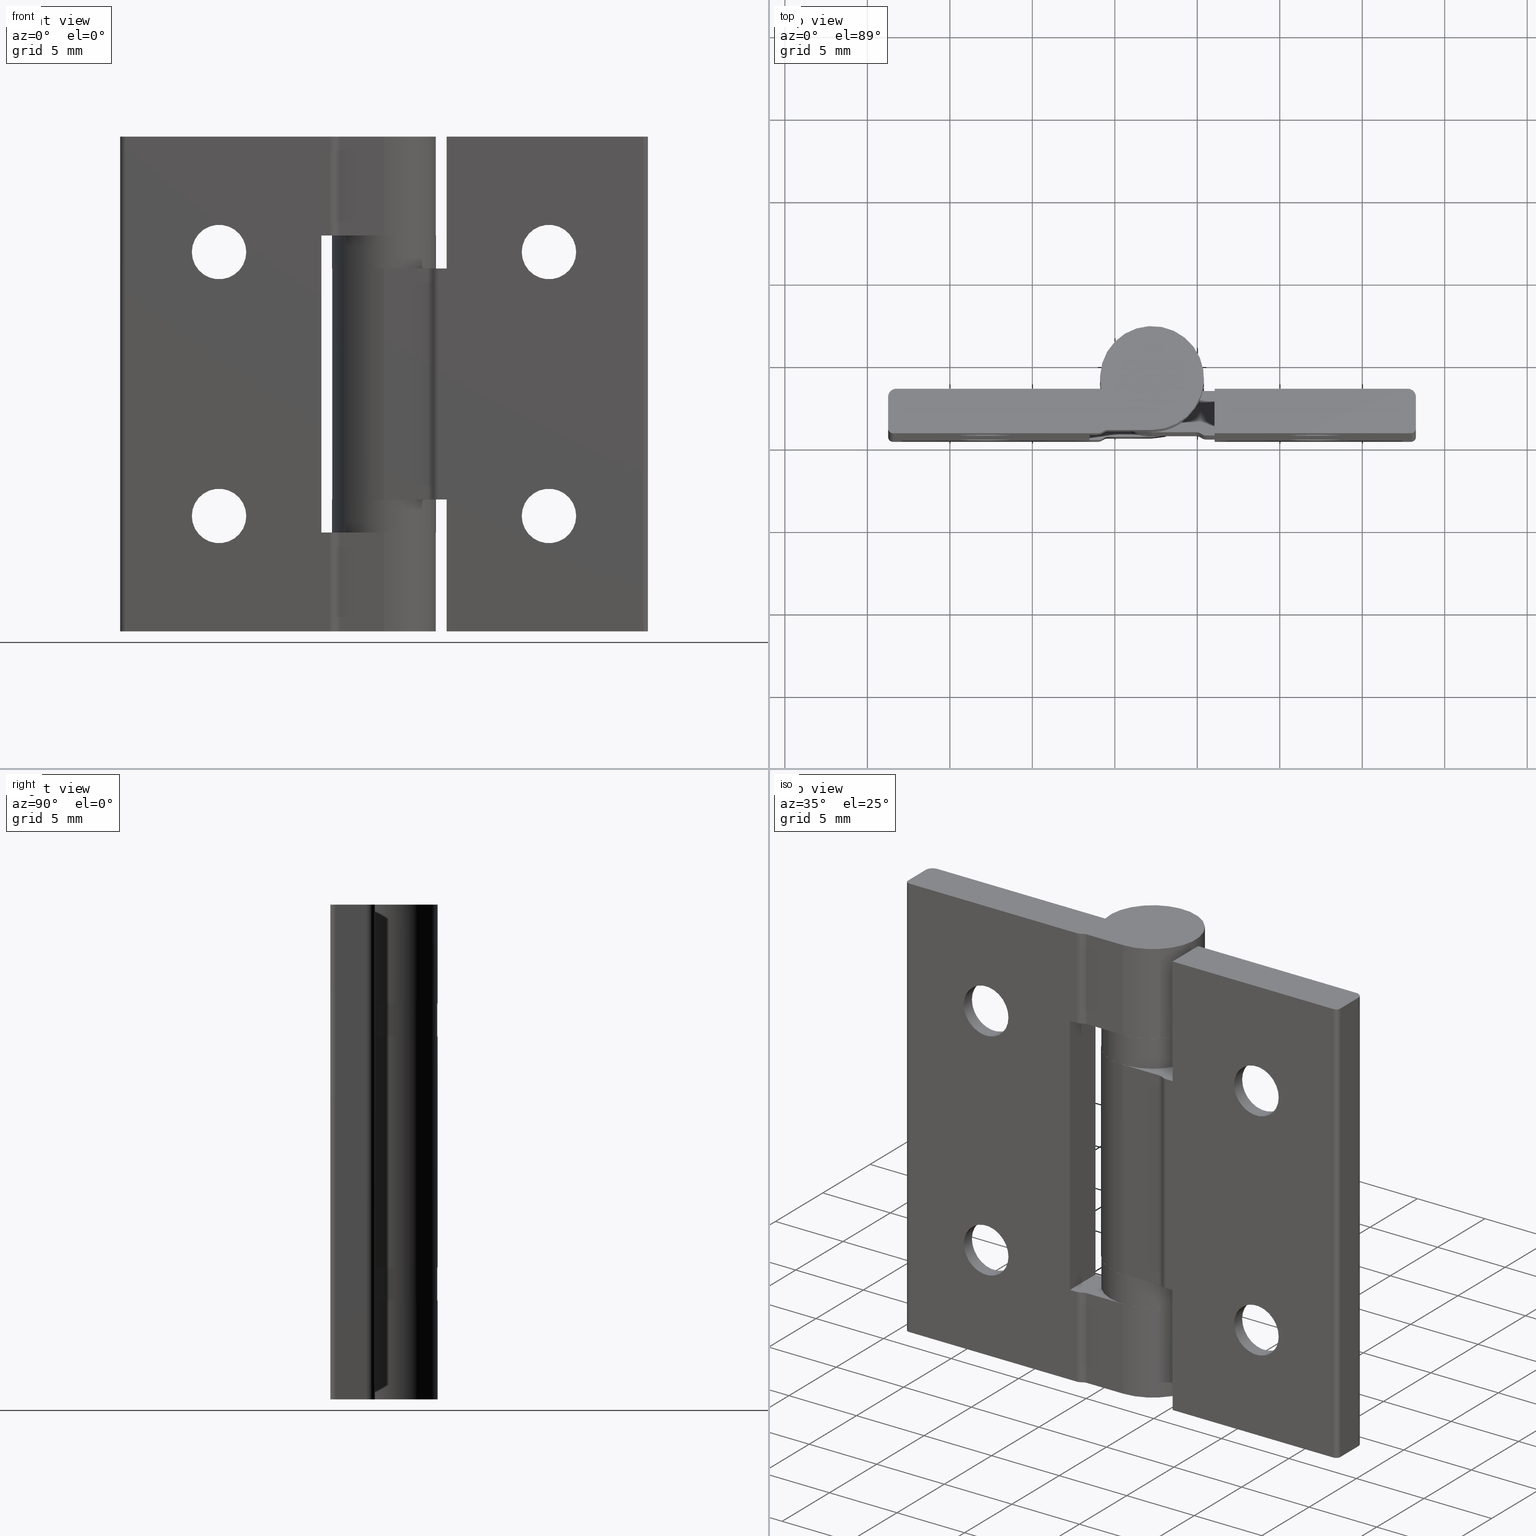
[diagram: canonical four-view strip — front | top / right | iso, engineering-drawing reading convention]
A machine part, canonical four-view strip (front | top / right | iso — engineering-drawing reading convention). The complete STEP part file that produces these views, byte-faithful:
ISO-10303-21;
HEADER;
/* Generated by software containing ST-Developer
 * from STEP Tools, Inc. (www.steptools.com) 
 */

FILE_DESCRIPTION(
/* description */ (''),
/* implementation_level */ '2;1');

FILE_NAME(
/* name */ '\\\\SYNOLOGYNAS\\web\\db2\\HA3032\\\X2\B3C4BA74\X0\\\HA303
2.stp',
/* time_stamp */ '2024-01-22T14:27:27+09:00',
/* author */ ('user'),
/* organization */ (''),
/* preprocessor_version */ 'ST-DEVELOPER v15.6',
/* originating_system */ 'Autodesk Inventor 2015',
/* authorisation */ '');

FILE_SCHEMA (('AUTOMOTIVE_DESIGN { 1 0 10303 214 3 1 1 }'));
ENDSEC;

DATA;
#10=MECHANICAL_DESIGN_GEOMETRIC_PRESENTATION_REPRESENTATION('',(#39,#41,
#42,#40),#1561);
#11=ITEM_DEFINED_TRANSFORMATION($,$,#902,#1008);
#12=ITEM_DEFINED_TRANSFORMATION($,$,#953,#1009);
#13=ITEM_DEFINED_TRANSFORMATION($,$,#953,#1010);
#14=ITEM_DEFINED_TRANSFORMATION($,$,#962,#1011);
#15=ITEM_DEFINED_TRANSFORMATION($,$,#1001,#1012);
#16=(
REPRESENTATION_RELATIONSHIP($,$,#1583,#1587)
REPRESENTATION_RELATIONSHIP_WITH_TRANSFORMATION(#11)
SHAPE_REPRESENTATION_RELATIONSHIP()
);
#17=(
REPRESENTATION_RELATIONSHIP($,$,#1584,#1587)
REPRESENTATION_RELATIONSHIP_WITH_TRANSFORMATION(#12)
SHAPE_REPRESENTATION_RELATIONSHIP()
);
#18=(
REPRESENTATION_RELATIONSHIP($,$,#1584,#1587)
REPRESENTATION_RELATIONSHIP_WITH_TRANSFORMATION(#13)
SHAPE_REPRESENTATION_RELATIONSHIP()
);
#19=(
REPRESENTATION_RELATIONSHIP($,$,#1585,#1587)
REPRESENTATION_RELATIONSHIP_WITH_TRANSFORMATION(#14)
SHAPE_REPRESENTATION_RELATIONSHIP()
);
#20=(
REPRESENTATION_RELATIONSHIP($,$,#1586,#1587)
REPRESENTATION_RELATIONSHIP_WITH_TRANSFORMATION(#15)
SHAPE_REPRESENTATION_RELATIONSHIP()
);
#21=CONTEXT_DEPENDENT_SHAPE_REPRESENTATION(#16,#1578);
#22=CONTEXT_DEPENDENT_SHAPE_REPRESENTATION(#17,#1579);
#23=CONTEXT_DEPENDENT_SHAPE_REPRESENTATION(#18,#1580);
#24=CONTEXT_DEPENDENT_SHAPE_REPRESENTATION(#19,#1581);
#25=CONTEXT_DEPENDENT_SHAPE_REPRESENTATION(#20,#1582);
#26=NEXT_ASSEMBLY_USAGE_OCCURRENCE('HA3032_L:1',$,$,#1593,#1589,$);
#27=NEXT_ASSEMBLY_USAGE_OCCURRENCE('HA3032_W:1',$,$,#1593,#1590,$);
#28=NEXT_ASSEMBLY_USAGE_OCCURRENCE('HA3032_W:2',$,$,#1593,#1590,$);
#29=NEXT_ASSEMBLY_USAGE_OCCURRENCE('HA3032_R:1',$,$,#1593,#1591,$);
#30=NEXT_ASSEMBLY_USAGE_OCCURRENCE('HA3032_P:1',$,$,#1593,#1592,$);
#31=SHAPE_REPRESENTATION_RELATIONSHIP('SRR','None',#1583,#35);
#32=SHAPE_REPRESENTATION_RELATIONSHIP('SRR','None',#1584,#36);
#33=SHAPE_REPRESENTATION_RELATIONSHIP('SRR','None',#1585,#37);
#34=SHAPE_REPRESENTATION_RELATIONSHIP('SRR','None',#1586,#38);
#35=ADVANCED_BREP_SHAPE_REPRESENTATION($,(#43),#1556);
#36=ADVANCED_BREP_SHAPE_REPRESENTATION($,(#44),#1557);
#37=ADVANCED_BREP_SHAPE_REPRESENTATION($,(#45),#1558);
#38=ADVANCED_BREP_SHAPE_REPRESENTATION($,(#46),#1559);
#39=STYLED_ITEM('',(#1612),#43);
#40=STYLED_ITEM('',(#1613),#44);
#41=STYLED_ITEM('',(#1614),#45);
#42=STYLED_ITEM('',(#1615),#46);
#43=MANIFOLD_SOLID_BREP('\X2\C194B9ACB4DC\X0\1',#898);
#44=MANIFOLD_SOLID_BREP('\X2\C194B9ACB4DC\X0\1',#899);
#45=MANIFOLD_SOLID_BREP('\X2\C194B9ACB4DC\X0\2',#900);
#46=MANIFOLD_SOLID_BREP('\X2\C194B9ACB4DC\X0\1',#901);
#47=CONICAL_SURFACE('',#920,2.575,45.);
#48=CONICAL_SURFACE('',#923,2.575,45.);
#49=CONICAL_SURFACE('',#974,2.575,45.);
#50=CONICAL_SURFACE('',#978,2.575,45.);
#51=FACE_BOUND('',#158,.T.);
#52=FACE_BOUND('',#159,.T.);
#53=FACE_BOUND('',#161,.T.);
#54=FACE_BOUND('',#164,.T.);
#55=FACE_BOUND('',#165,.T.);
#56=FACE_BOUND('',#167,.T.);
#57=FACE_BOUND('',#169,.T.);
#58=FACE_BOUND('',#171,.T.);
#59=FACE_BOUND('',#173,.T.);
#60=FACE_BOUND('',#176,.T.);
#61=FACE_BOUND('',#178,.T.);
#62=FACE_BOUND('',#185,.T.);
#63=FACE_BOUND('',#190,.T.);
#64=FACE_BOUND('',#193,.T.);
#65=FACE_BOUND('',#195,.T.);
#66=FACE_BOUND('',#197,.T.);
#67=FACE_BOUND('',#199,.T.);
#68=FACE_BOUND('',#201,.T.);
#69=FACE_BOUND('',#207,.T.);
#70=FACE_BOUND('',#208,.T.);
#71=FACE_BOUND('',#210,.T.);
#72=FACE_BOUND('',#212,.T.);
#73=FACE_BOUND('',#214,.T.);
#74=FACE_BOUND('',#216,.T.);
#75=FACE_BOUND('',#218,.T.);
#76=FACE_BOUND('',#222,.T.);
#77=FACE_BOUND('',#227,.T.);
#78=FACE_BOUND('',#228,.T.);
#79=FACE_BOUND('',#231,.T.);
#80=FACE_BOUND('',#234,.T.);
#81=PLANE('',#906);
#82=PLANE('',#909);
#83=PLANE('',#917);
#84=PLANE('',#926);
#85=PLANE('',#927);
#86=PLANE('',#932);
#87=PLANE('',#940);
#88=PLANE('',#948);
#89=PLANE('',#951);
#90=PLANE('',#952);
#91=PLANE('',#960);
#92=PLANE('',#961);
#93=PLANE('',#966);
#94=PLANE('',#967);
#95=PLANE('',#971);
#96=PLANE('',#982);
#97=PLANE('',#987);
#98=PLANE('',#988);
#99=PLANE('',#989);
#100=PLANE('',#994);
#101=PLANE('',#997);
#102=PLANE('',#998);
#103=PLANE('',#1005);
#104=PLANE('',#1006);
#105=FACE_OUTER_BOUND('',#156,.T.);
#106=FACE_OUTER_BOUND('',#157,.T.);
#107=FACE_OUTER_BOUND('',#160,.T.);
#108=FACE_OUTER_BOUND('',#162,.T.);
#109=FACE_OUTER_BOUND('',#163,.T.);
#110=FACE_OUTER_BOUND('',#166,.T.);
#111=FACE_OUTER_BOUND('',#168,.T.);
#112=FACE_OUTER_BOUND('',#170,.T.);
#113=FACE_OUTER_BOUND('',#172,.T.);
#114=FACE_OUTER_BOUND('',#174,.T.);
#115=FACE_OUTER_BOUND('',#175,.T.);
#116=FACE_OUTER_BOUND('',#177,.T.);
#117=FACE_OUTER_BOUND('',#179,.T.);
#118=FACE_OUTER_BOUND('',#180,.T.);
#119=FACE_OUTER_BOUND('',#181,.T.);
#120=FACE_OUTER_BOUND('',#182,.T.);
#121=FACE_OUTER_BOUND('',#183,.T.);
#122=FACE_OUTER_BOUND('',#184,.T.);
#123=FACE_OUTER_BOUND('',#186,.T.);
#124=FACE_OUTER_BOUND('',#187,.T.);
#125=FACE_OUTER_BOUND('',#188,.T.);
#126=FACE_OUTER_BOUND('',#189,.T.);
#127=FACE_OUTER_BOUND('',#191,.T.);
#128=FACE_OUTER_BOUND('',#192,.T.);
#129=FACE_OUTER_BOUND('',#194,.T.);
#130=FACE_OUTER_BOUND('',#196,.T.);
#131=FACE_OUTER_BOUND('',#198,.T.);
#132=FACE_OUTER_BOUND('',#200,.T.);
#133=FACE_OUTER_BOUND('',#202,.T.);
#134=FACE_OUTER_BOUND('',#203,.T.);
#135=FACE_OUTER_BOUND('',#204,.T.);
#136=FACE_OUTER_BOUND('',#205,.T.);
#137=FACE_OUTER_BOUND('',#206,.T.);
#138=FACE_OUTER_BOUND('',#209,.T.);
#139=FACE_OUTER_BOUND('',#211,.T.);
#140=FACE_OUTER_BOUND('',#213,.T.);
#141=FACE_OUTER_BOUND('',#215,.T.);
#142=FACE_OUTER_BOUND('',#217,.T.);
#143=FACE_OUTER_BOUND('',#219,.T.);
#144=FACE_OUTER_BOUND('',#220,.T.);
#145=FACE_OUTER_BOUND('',#221,.T.);
#146=FACE_OUTER_BOUND('',#223,.T.);
#147=FACE_OUTER_BOUND('',#224,.T.);
#148=FACE_OUTER_BOUND('',#225,.T.);
#149=FACE_OUTER_BOUND('',#226,.T.);
#150=FACE_OUTER_BOUND('',#229,.T.);
#151=FACE_OUTER_BOUND('',#230,.T.);
#152=FACE_OUTER_BOUND('',#232,.T.);
#153=FACE_OUTER_BOUND('',#233,.T.);
#154=FACE_OUTER_BOUND('',#235,.T.);
#155=FACE_OUTER_BOUND('',#236,.T.);
#156=EDGE_LOOP('',(#602,#603,#604,#605));
#157=EDGE_LOOP('',(#606,#607,#608,#609,#610,#611,#612,#613));
#158=EDGE_LOOP('',(#614));
#159=EDGE_LOOP('',(#615));
#160=EDGE_LOOP('',(#616,#617,#618,#619,#620,#621,#622,#623,#624));
#161=EDGE_LOOP('',(#625));
#162=EDGE_LOOP('',(#626,#627,#628,#629));
#163=EDGE_LOOP('',(#630,#631,#632,#633,#634,#635,#636,#637));
#164=EDGE_LOOP('',(#638));
#165=EDGE_LOOP('',(#639));
#166=EDGE_LOOP('',(#640));
#167=EDGE_LOOP('',(#641));
#168=EDGE_LOOP('',(#642));
#169=EDGE_LOOP('',(#643));
#170=EDGE_LOOP('',(#644));
#171=EDGE_LOOP('',(#645));
#172=EDGE_LOOP('',(#646));
#173=EDGE_LOOP('',(#647));
#174=EDGE_LOOP('',(#648,#649,#650,#651));
#175=EDGE_LOOP('',(#652,#653,#654,#655,#656,#657,#658));
#176=EDGE_LOOP('',(#659));
#177=EDGE_LOOP('',(#660,#661,#662,#663,#664,#665,#666));
#178=EDGE_LOOP('',(#667));
#179=EDGE_LOOP('',(#668,#669,#670,#671));
#180=EDGE_LOOP('',(#672,#673,#674,#675));
#181=EDGE_LOOP('',(#676,#677,#678,#679));
#182=EDGE_LOOP('',(#680,#681,#682,#683));
#183=EDGE_LOOP('',(#684,#685,#686,#687));
#184=EDGE_LOOP('',(#688));
#185=EDGE_LOOP('',(#689));
#186=EDGE_LOOP('',(#690,#691,#692,#693));
#187=EDGE_LOOP('',(#694,#695,#696,#697));
#188=EDGE_LOOP('',(#698,#699,#700,#701));
#189=EDGE_LOOP('',(#702));
#190=EDGE_LOOP('',(#703));
#191=EDGE_LOOP('',(#704,#705,#706,#707));
#192=EDGE_LOOP('',(#708,#709,#710,#711,#712,#713,#714,#715,#716));
#193=EDGE_LOOP('',(#717));
#194=EDGE_LOOP('',(#718));
#195=EDGE_LOOP('',(#719));
#196=EDGE_LOOP('',(#720));
#197=EDGE_LOOP('',(#721));
#198=EDGE_LOOP('',(#722));
#199=EDGE_LOOP('',(#723));
#200=EDGE_LOOP('',(#724));
#201=EDGE_LOOP('',(#725));
#202=EDGE_LOOP('',(#726,#727,#728,#729));
#203=EDGE_LOOP('',(#730,#731,#732,#733));
#204=EDGE_LOOP('',(#734,#735,#736,#737,#738,#739));
#205=EDGE_LOOP('',(#740,#741,#742,#743));
#206=EDGE_LOOP('',(#744,#745,#746,#747,#748,#749,#750,#751));
#207=EDGE_LOOP('',(#752));
#208=EDGE_LOOP('',(#753));
#209=EDGE_LOOP('',(#754));
#210=EDGE_LOOP('',(#755));
#211=EDGE_LOOP('',(#756));
#212=EDGE_LOOP('',(#757));
#213=EDGE_LOOP('',(#758));
#214=EDGE_LOOP('',(#759));
#215=EDGE_LOOP('',(#760));
#216=EDGE_LOOP('',(#761));
#217=EDGE_LOOP('',(#762,#763,#764,#765,#766,#767,#768));
#218=EDGE_LOOP('',(#769));
#219=EDGE_LOOP('',(#770,#771,#772,#773));
#220=EDGE_LOOP('',(#774,#775,#776,#777));
#221=EDGE_LOOP('',(#778,#779,#780,#781,#782,#783,#784));
#222=EDGE_LOOP('',(#785));
#223=EDGE_LOOP('',(#786,#787,#788,#789));
#224=EDGE_LOOP('',(#790,#791,#792,#793));
#225=EDGE_LOOP('',(#794,#795,#796,#797));
#226=EDGE_LOOP('',(#798,#799,#800,#801,#802,#803,#804,#805));
#227=EDGE_LOOP('',(#806));
#228=EDGE_LOOP('',(#807));
#229=EDGE_LOOP('',(#808,#809,#810,#811,#812,#813));
#230=EDGE_LOOP('',(#814));
#231=EDGE_LOOP('',(#815));
#232=EDGE_LOOP('',(#816,#817,#818,#819));
#233=EDGE_LOOP('',(#820));
#234=EDGE_LOOP('',(#821));
#235=EDGE_LOOP('',(#822));
#236=EDGE_LOOP('',(#823));
#237=LINE('',#1302,#298);
#238=LINE('',#1305,#299);
#239=LINE('',#1308,#300);
#240=LINE('',#1310,#301);
#241=LINE('',#1312,#302);
#242=LINE('',#1314,#303);
#243=LINE('',#1316,#304);
#244=LINE('',#1318,#305);
#245=LINE('',#1319,#306);
#246=LINE('',#1326,#307);
#247=LINE('',#1330,#308);
#248=LINE('',#1334,#309);
#249=LINE('',#1342,#310);
#250=LINE('',#1345,#311);
#251=LINE('',#1348,#312);
#252=LINE('',#1350,#313);
#253=LINE('',#1352,#314);
#254=LINE('',#1354,#315);
#255=LINE('',#1356,#316);
#256=LINE('',#1357,#317);
#257=LINE('',#1371,#318);
#258=LINE('',#1372,#319);
#259=LINE('',#1379,#320);
#260=LINE('',#1387,#321);
#261=LINE('',#1394,#322);
#262=LINE('',#1398,#323);
#263=LINE('',#1400,#324);
#264=LINE('',#1402,#325);
#265=LINE('',#1407,#326);
#266=LINE('',#1411,#327);
#267=LINE('',#1414,#328);
#268=LINE('',#1419,#329);
#269=LINE('',#1440,#330);
#270=LINE('',#1443,#331);
#271=LINE('',#1446,#332);
#272=LINE('',#1448,#333);
#273=LINE('',#1449,#334);
#274=LINE('',#1452,#335);
#275=LINE('',#1454,#336);
#276=LINE('',#1456,#337);
#277=LINE('',#1460,#338);
#278=LINE('',#1464,#339);
#279=LINE('',#1466,#340);
#280=LINE('',#1468,#341);
#281=LINE('',#1470,#342);
#282=LINE('',#1472,#343);
#283=LINE('',#1473,#344);
#284=LINE('',#1492,#345);
#285=LINE('',#1494,#346);
#286=LINE('',#1500,#347);
#287=LINE('',#1505,#348);
#288=LINE('',#1508,#349);
#289=LINE('',#1510,#350);
#290=LINE('',#1511,#351);
#291=LINE('',#1516,#352);
#292=LINE('',#1521,#353);
#293=LINE('',#1525,#354);
#294=LINE('',#1526,#355);
#295=LINE('',#1528,#356);
#296=LINE('',#1530,#357);
#297=LINE('',#1532,#358);
#298=VECTOR('',#1019,30.);
#299=VECTOR('',#1022,30.);
#300=VECTOR('',#1025,12.4177929985155);
#301=VECTOR('',#1026,6.);
#302=VECTOR('',#1027,0.517792998515516);
#303=VECTOR('',#1028,18.);
#304=VECTOR('',#1029,0.517792998515511);
#305=VECTOR('',#1030,6.);
#306=VECTOR('',#1031,12.4177929985155);
#307=VECTOR('',#1038,1.9);
#308=VECTOR('',#1041,12.4177929985155);
#309=VECTOR('',#1044,2.68220700148449);
#310=VECTOR('',#1053,30.);
#311=VECTOR('',#1056,30.);
#312=VECTOR('',#1059,12.4177929985155);
#313=VECTOR('',#1060,6.);
#314=VECTOR('',#1061,0.717792998515511);
#315=VECTOR('',#1062,18.);
#316=VECTOR('',#1063,0.717792998515515);
#317=VECTOR('',#1064,6.);
#318=VECTOR('',#1083,2.7);
#319=VECTOR('',#1084,2.7);
#320=VECTOR('',#1091,2.68220700148449);
#321=VECTOR('',#1100,2.68220700148449);
#322=VECTOR('',#1109,6.);
#323=VECTOR('',#1114,6.);
#324=VECTOR('',#1117,6.);
#325=VECTOR('',#1120,6.);
#326=VECTOR('',#1127,6.);
#327=VECTOR('',#1132,6.);
#328=VECTOR('',#1137,2.68220700148449);
#329=VECTOR('',#1144,1.9);
#330=VECTOR('',#1171,30.);
#331=VECTOR('',#1174,30.);
#332=VECTOR('',#1177,1.9);
#333=VECTOR('',#1178,30.);
#334=VECTOR('',#1179,1.9);
#335=VECTOR('',#1182,11.9);
#336=VECTOR('',#1183,2.7);
#337=VECTOR('',#1184,11.7);
#338=VECTOR('',#1189,30.);
#339=VECTOR('',#1194,8.);
#340=VECTOR('',#1195,0.717792998515512);
#341=VECTOR('',#1196,14.);
#342=VECTOR('',#1197,0.717792998515512);
#343=VECTOR('',#1198,8.);
#344=VECTOR('',#1199,11.7);
#345=VECTOR('',#1222,2.7);
#346=VECTOR('',#1223,0.517792998515511);
#347=VECTOR('',#1228,2.68220700148449);
#348=VECTOR('',#1235,8.);
#349=VECTOR('',#1238,2.7);
#350=VECTOR('',#1239,8.);
#351=VECTOR('',#1240,2.7);
#352=VECTOR('',#1245,2.68220700148449);
#353=VECTOR('',#1250,0.517792998515511);
#354=VECTOR('',#1255,14.);
#355=VECTOR('',#1256,14.);
#356=VECTOR('',#1259,14.);
#357=VECTOR('',#1262,14.);
#358=VECTOR('',#1265,11.9);
#359=CIRCLE('',#904,0.3);
#360=CIRCLE('',#905,0.3);
#361=CIRCLE('',#907,1.65);
#362=CIRCLE('',#908,1.65);
#363=CIRCLE('',#910,0.5);
#364=CIRCLE('',#911,3.15);
#365=CIRCLE('',#912,0.5);
#366=CIRCLE('',#913,0.5);
#367=CIRCLE('',#914,1.25);
#368=CIRCLE('',#916,0.5);
#369=CIRCLE('',#918,3.5);
#370=CIRCLE('',#919,3.5);
#371=CIRCLE('',#921,1.65);
#372=CIRCLE('',#924,1.65);
#373=CIRCLE('',#928,0.5);
#374=CIRCLE('',#929,0.5);
#375=CIRCLE('',#930,3.15);
#376=CIRCLE('',#931,1.25);
#377=CIRCLE('',#933,3.15);
#378=CIRCLE('',#934,0.5);
#379=CIRCLE('',#935,0.5);
#380=CIRCLE('',#936,1.25);
#381=CIRCLE('',#939,3.15);
#382=CIRCLE('',#945,0.5);
#383=CIRCLE('',#947,0.5);
#384=CIRCLE('',#950,1.25);
#385=CIRCLE('',#955,1.25);
#386=CIRCLE('',#956,1.25);
#387=CIRCLE('',#958,3.15);
#388=CIRCLE('',#959,3.15);
#389=CIRCLE('',#964,0.3);
#390=CIRCLE('',#965,0.3);
#391=CIRCLE('',#968,0.5);
#392=CIRCLE('',#970,0.5);
#393=CIRCLE('',#972,3.5);
#394=CIRCLE('',#973,3.5);
#395=CIRCLE('',#975,1.65);
#396=CIRCLE('',#977,1.65);
#397=CIRCLE('',#979,1.65);
#398=CIRCLE('',#981,1.65);
#399=CIRCLE('',#983,0.5);
#400=CIRCLE('',#984,0.5);
#401=CIRCLE('',#985,3.15);
#402=CIRCLE('',#986,1.25);
#403=CIRCLE('',#990,3.15);
#404=CIRCLE('',#991,0.5);
#405=CIRCLE('',#992,0.5);
#406=CIRCLE('',#993,1.25);
#407=CIRCLE('',#1003,1.25);
#408=CIRCLE('',#1004,1.25);
#409=VERTEX_POINT('',#1298);
#410=VERTEX_POINT('',#1299);
#411=VERTEX_POINT('',#1301);
#412=VERTEX_POINT('',#1303);
#413=VERTEX_POINT('',#1307);
#414=VERTEX_POINT('',#1309);
#415=VERTEX_POINT('',#1311);
#416=VERTEX_POINT('',#1313);
#417=VERTEX_POINT('',#1315);
#418=VERTEX_POINT('',#1317);
#419=VERTEX_POINT('',#1320);
#420=VERTEX_POINT('',#1322);
#421=VERTEX_POINT('',#1325);
#422=VERTEX_POINT('',#1327);
#423=VERTEX_POINT('',#1329);
#424=VERTEX_POINT('',#1331);
#425=VERTEX_POINT('',#1333);
#426=VERTEX_POINT('',#1335);
#427=VERTEX_POINT('',#1338);
#428=VERTEX_POINT('',#1341);
#429=VERTEX_POINT('',#1343);
#430=VERTEX_POINT('',#1347);
#431=VERTEX_POINT('',#1349);
#432=VERTEX_POINT('',#1351);
#433=VERTEX_POINT('',#1353);
#434=VERTEX_POINT('',#1355);
#435=VERTEX_POINT('',#1358);
#436=VERTEX_POINT('',#1360);
#437=VERTEX_POINT('',#1363);
#438=VERTEX_POINT('',#1367);
#439=VERTEX_POINT('',#1374);
#440=VERTEX_POINT('',#1376);
#441=VERTEX_POINT('',#1378);
#442=VERTEX_POINT('',#1381);
#443=VERTEX_POINT('',#1384);
#444=VERTEX_POINT('',#1386);
#445=VERTEX_POINT('',#1388);
#446=VERTEX_POINT('',#1391);
#447=VERTEX_POINT('',#1396);
#448=VERTEX_POINT('',#1406);
#449=VERTEX_POINT('',#1410);
#450=VERTEX_POINT('',#1416);
#451=VERTEX_POINT('',#1423);
#452=VERTEX_POINT('',#1425);
#453=VERTEX_POINT('',#1428);
#454=VERTEX_POINT('',#1430);
#455=VERTEX_POINT('',#1436);
#456=VERTEX_POINT('',#1437);
#457=VERTEX_POINT('',#1439);
#458=VERTEX_POINT('',#1441);
#459=VERTEX_POINT('',#1445);
#460=VERTEX_POINT('',#1447);
#461=VERTEX_POINT('',#1451);
#462=VERTEX_POINT('',#1453);
#463=VERTEX_POINT('',#1455);
#464=VERTEX_POINT('',#1459);
#465=VERTEX_POINT('',#1463);
#466=VERTEX_POINT('',#1465);
#467=VERTEX_POINT('',#1467);
#468=VERTEX_POINT('',#1469);
#469=VERTEX_POINT('',#1471);
#470=VERTEX_POINT('',#1474);
#471=VERTEX_POINT('',#1476);
#472=VERTEX_POINT('',#1479);
#473=VERTEX_POINT('',#1482);
#474=VERTEX_POINT('',#1485);
#475=VERTEX_POINT('',#1488);
#476=VERTEX_POINT('',#1491);
#477=VERTEX_POINT('',#1493);
#478=VERTEX_POINT('',#1495);
#479=VERTEX_POINT('',#1497);
#480=VERTEX_POINT('',#1499);
#481=VERTEX_POINT('',#1502);
#482=VERTEX_POINT('',#1507);
#483=VERTEX_POINT('',#1509);
#484=VERTEX_POINT('',#1513);
#485=VERTEX_POINT('',#1515);
#486=VERTEX_POINT('',#1517);
#487=VERTEX_POINT('',#1519);
#488=VERTEX_POINT('',#1522);
#489=VERTEX_POINT('',#1538);
#490=VERTEX_POINT('',#1540);
#491=EDGE_CURVE('',#409,#410,#359,.T.);
#492=EDGE_CURVE('',#410,#411,#237,.T.);
#493=EDGE_CURVE('',#411,#412,#360,.T.);
#494=EDGE_CURVE('',#412,#409,#238,.T.);
#495=EDGE_CURVE('',#413,#410,#239,.T.);
#496=EDGE_CURVE('',#414,#413,#240,.T.);
#497=EDGE_CURVE('',#414,#415,#241,.T.);
#498=EDGE_CURVE('',#415,#416,#242,.T.);
#499=EDGE_CURVE('',#416,#417,#243,.T.);
#500=EDGE_CURVE('',#418,#417,#244,.T.);
#501=EDGE_CURVE('',#418,#411,#245,.T.);
#502=EDGE_CURVE('',#419,#419,#361,.T.);
#503=EDGE_CURVE('',#420,#420,#362,.T.);
#504=EDGE_CURVE('',#409,#421,#246,.T.);
#505=EDGE_CURVE('',#422,#421,#363,.T.);
#506=EDGE_CURVE('',#422,#423,#247,.T.);
#507=EDGE_CURVE('',#423,#424,#364,.T.);
#508=EDGE_CURVE('',#424,#425,#248,.T.);
#509=EDGE_CURVE('',#426,#425,#365,.T.);
#510=EDGE_CURVE('',#413,#426,#366,.T.);
#511=EDGE_CURVE('',#427,#427,#367,.T.);
#512=EDGE_CURVE('',#421,#428,#249,.T.);
#513=EDGE_CURVE('',#428,#429,#368,.T.);
#514=EDGE_CURVE('',#429,#422,#250,.T.);
#515=EDGE_CURVE('',#429,#430,#251,.T.);
#516=EDGE_CURVE('',#431,#430,#252,.T.);
#517=EDGE_CURVE('',#431,#432,#253,.T.);
#518=EDGE_CURVE('',#432,#433,#254,.T.);
#519=EDGE_CURVE('',#433,#434,#255,.T.);
#520=EDGE_CURVE('',#423,#434,#256,.T.);
#521=EDGE_CURVE('',#435,#435,#369,.T.);
#522=EDGE_CURVE('',#436,#436,#370,.T.);
#523=EDGE_CURVE('',#437,#437,#371,.T.);
#524=EDGE_CURVE('',#438,#438,#372,.T.);
#525=EDGE_CURVE('',#432,#416,#257,.T.);
#526=EDGE_CURVE('',#415,#433,#258,.T.);
#527=EDGE_CURVE('',#439,#414,#373,.T.);
#528=EDGE_CURVE('',#440,#439,#374,.T.);
#529=EDGE_CURVE('',#441,#440,#259,.T.);
#530=EDGE_CURVE('',#434,#441,#375,.T.);
#531=EDGE_CURVE('',#442,#442,#376,.T.);
#532=EDGE_CURVE('',#443,#431,#377,.T.);
#533=EDGE_CURVE('',#444,#443,#260,.T.);
#534=EDGE_CURVE('',#445,#444,#378,.T.);
#535=EDGE_CURVE('',#417,#445,#379,.T.);
#536=EDGE_CURVE('',#446,#446,#380,.T.);
#537=EDGE_CURVE('',#441,#424,#261,.T.);
#538=EDGE_CURVE('',#430,#447,#381,.T.);
#539=EDGE_CURVE('',#447,#443,#262,.T.);
#540=EDGE_CURVE('',#425,#440,#263,.T.);
#541=EDGE_CURVE('',#426,#439,#264,.T.);
#542=EDGE_CURVE('',#445,#448,#265,.T.);
#543=EDGE_CURVE('',#448,#418,#382,.T.);
#544=EDGE_CURVE('',#444,#449,#266,.T.);
#545=EDGE_CURVE('',#448,#449,#383,.F.);
#546=EDGE_CURVE('',#449,#447,#267,.T.);
#547=EDGE_CURVE('',#450,#450,#384,.T.);
#548=EDGE_CURVE('',#412,#428,#268,.T.);
#549=EDGE_CURVE('',#451,#451,#385,.T.);
#550=EDGE_CURVE('',#452,#452,#386,.T.);
#551=EDGE_CURVE('',#453,#453,#387,.T.);
#552=EDGE_CURVE('',#454,#454,#388,.T.);
#553=EDGE_CURVE('',#455,#456,#389,.T.);
#554=EDGE_CURVE('',#456,#457,#269,.T.);
#555=EDGE_CURVE('',#457,#458,#390,.T.);
#556=EDGE_CURVE('',#458,#455,#270,.T.);
#557=EDGE_CURVE('',#459,#456,#271,.T.);
#558=EDGE_CURVE('',#460,#459,#272,.T.);
#559=EDGE_CURVE('',#460,#457,#273,.T.);
#560=EDGE_CURVE('',#455,#461,#274,.T.);
#561=EDGE_CURVE('',#461,#462,#275,.T.);
#562=EDGE_CURVE('',#462,#463,#276,.T.);
#563=EDGE_CURVE('',#459,#463,#391,.T.);
#564=EDGE_CURVE('',#463,#464,#277,.T.);
#565=EDGE_CURVE('',#464,#460,#392,.T.);
#566=EDGE_CURVE('',#462,#465,#278,.T.);
#567=EDGE_CURVE('',#465,#466,#279,.T.);
#568=EDGE_CURVE('',#467,#466,#280,.T.);
#569=EDGE_CURVE('',#467,#468,#281,.T.);
#570=EDGE_CURVE('',#468,#469,#282,.T.);
#571=EDGE_CURVE('',#469,#464,#283,.T.);
#572=EDGE_CURVE('',#470,#470,#393,.T.);
#573=EDGE_CURVE('',#471,#471,#394,.T.);
#574=EDGE_CURVE('',#472,#472,#395,.T.);
#575=EDGE_CURVE('',#473,#473,#396,.T.);
#576=EDGE_CURVE('',#474,#474,#397,.T.);
#577=EDGE_CURVE('',#475,#475,#398,.T.);
#578=EDGE_CURVE('',#465,#476,#284,.T.);
#579=EDGE_CURVE('',#477,#476,#285,.T.);
#580=EDGE_CURVE('',#478,#477,#399,.T.);
#581=EDGE_CURVE('',#479,#478,#400,.T.);
#582=EDGE_CURVE('',#480,#479,#286,.T.);
#583=EDGE_CURVE('',#466,#480,#401,.T.);
#584=EDGE_CURVE('',#481,#481,#402,.T.);
#585=EDGE_CURVE('',#476,#461,#287,.T.);
#586=EDGE_CURVE('',#482,#468,#288,.T.);
#587=EDGE_CURVE('',#483,#482,#289,.T.);
#588=EDGE_CURVE('',#469,#483,#290,.T.);
#589=EDGE_CURVE('',#484,#467,#403,.T.);
#590=EDGE_CURVE('',#485,#484,#291,.T.);
#591=EDGE_CURVE('',#486,#485,#404,.T.);
#592=EDGE_CURVE('',#487,#486,#405,.T.);
#593=EDGE_CURVE('',#482,#487,#292,.T.);
#594=EDGE_CURVE('',#488,#488,#406,.T.);
#595=EDGE_CURVE('',#485,#479,#293,.T.);
#596=EDGE_CURVE('',#480,#484,#294,.T.);
#597=EDGE_CURVE('',#486,#478,#295,.T.);
#598=EDGE_CURVE('',#477,#487,#296,.T.);
#599=EDGE_CURVE('',#458,#483,#297,.T.);
#600=EDGE_CURVE('',#489,#489,#407,.T.);
#601=EDGE_CURVE('',#490,#490,#408,.T.);
#602=ORIENTED_EDGE('',*,*,#491,.T.);
#603=ORIENTED_EDGE('',*,*,#492,.T.);
#604=ORIENTED_EDGE('',*,*,#493,.T.);
#605=ORIENTED_EDGE('',*,*,#494,.T.);
#606=ORIENTED_EDGE('',*,*,#492,.F.);
#607=ORIENTED_EDGE('',*,*,#495,.F.);
#608=ORIENTED_EDGE('',*,*,#496,.F.);
#609=ORIENTED_EDGE('',*,*,#497,.T.);
#610=ORIENTED_EDGE('',*,*,#498,.T.);
#611=ORIENTED_EDGE('',*,*,#499,.T.);
#612=ORIENTED_EDGE('',*,*,#500,.F.);
#613=ORIENTED_EDGE('',*,*,#501,.T.);
#614=ORIENTED_EDGE('',*,*,#502,.T.);
#615=ORIENTED_EDGE('',*,*,#503,.T.);
#616=ORIENTED_EDGE('',*,*,#491,.F.);
#617=ORIENTED_EDGE('',*,*,#504,.T.);
#618=ORIENTED_EDGE('',*,*,#505,.F.);
#619=ORIENTED_EDGE('',*,*,#506,.T.);
#620=ORIENTED_EDGE('',*,*,#507,.T.);
#621=ORIENTED_EDGE('',*,*,#508,.T.);
#622=ORIENTED_EDGE('',*,*,#509,.F.);
#623=ORIENTED_EDGE('',*,*,#510,.F.);
#624=ORIENTED_EDGE('',*,*,#495,.T.);
#625=ORIENTED_EDGE('',*,*,#511,.T.);
#626=ORIENTED_EDGE('',*,*,#505,.T.);
#627=ORIENTED_EDGE('',*,*,#512,.T.);
#628=ORIENTED_EDGE('',*,*,#513,.T.);
#629=ORIENTED_EDGE('',*,*,#514,.T.);
#630=ORIENTED_EDGE('',*,*,#514,.F.);
#631=ORIENTED_EDGE('',*,*,#515,.T.);
#632=ORIENTED_EDGE('',*,*,#516,.F.);
#633=ORIENTED_EDGE('',*,*,#517,.T.);
#634=ORIENTED_EDGE('',*,*,#518,.T.);
#635=ORIENTED_EDGE('',*,*,#519,.T.);
#636=ORIENTED_EDGE('',*,*,#520,.F.);
#637=ORIENTED_EDGE('',*,*,#506,.F.);
#638=ORIENTED_EDGE('',*,*,#521,.T.);
#639=ORIENTED_EDGE('',*,*,#522,.T.);
#640=ORIENTED_EDGE('',*,*,#522,.F.);
#641=ORIENTED_EDGE('',*,*,#523,.F.);
#642=ORIENTED_EDGE('',*,*,#503,.F.);
#643=ORIENTED_EDGE('',*,*,#523,.T.);
#644=ORIENTED_EDGE('',*,*,#521,.F.);
#645=ORIENTED_EDGE('',*,*,#524,.F.);
#646=ORIENTED_EDGE('',*,*,#502,.F.);
#647=ORIENTED_EDGE('',*,*,#524,.T.);
#648=ORIENTED_EDGE('',*,*,#518,.F.);
#649=ORIENTED_EDGE('',*,*,#525,.T.);
#650=ORIENTED_EDGE('',*,*,#498,.F.);
#651=ORIENTED_EDGE('',*,*,#526,.T.);
#652=ORIENTED_EDGE('',*,*,#519,.F.);
#653=ORIENTED_EDGE('',*,*,#526,.F.);
#654=ORIENTED_EDGE('',*,*,#497,.F.);
#655=ORIENTED_EDGE('',*,*,#527,.F.);
#656=ORIENTED_EDGE('',*,*,#528,.F.);
#657=ORIENTED_EDGE('',*,*,#529,.F.);
#658=ORIENTED_EDGE('',*,*,#530,.F.);
#659=ORIENTED_EDGE('',*,*,#531,.F.);
#660=ORIENTED_EDGE('',*,*,#517,.F.);
#661=ORIENTED_EDGE('',*,*,#532,.F.);
#662=ORIENTED_EDGE('',*,*,#533,.F.);
#663=ORIENTED_EDGE('',*,*,#534,.F.);
#664=ORIENTED_EDGE('',*,*,#535,.F.);
#665=ORIENTED_EDGE('',*,*,#499,.F.);
#666=ORIENTED_EDGE('',*,*,#525,.F.);
#667=ORIENTED_EDGE('',*,*,#536,.F.);
#668=ORIENTED_EDGE('',*,*,#530,.T.);
#669=ORIENTED_EDGE('',*,*,#537,.T.);
#670=ORIENTED_EDGE('',*,*,#507,.F.);
#671=ORIENTED_EDGE('',*,*,#520,.T.);
#672=ORIENTED_EDGE('',*,*,#532,.T.);
#673=ORIENTED_EDGE('',*,*,#516,.T.);
#674=ORIENTED_EDGE('',*,*,#538,.T.);
#675=ORIENTED_EDGE('',*,*,#539,.T.);
#676=ORIENTED_EDGE('',*,*,#529,.T.);
#677=ORIENTED_EDGE('',*,*,#540,.F.);
#678=ORIENTED_EDGE('',*,*,#508,.F.);
#679=ORIENTED_EDGE('',*,*,#537,.F.);
#680=ORIENTED_EDGE('',*,*,#528,.T.);
#681=ORIENTED_EDGE('',*,*,#541,.F.);
#682=ORIENTED_EDGE('',*,*,#509,.T.);
#683=ORIENTED_EDGE('',*,*,#540,.T.);
#684=ORIENTED_EDGE('',*,*,#527,.T.);
#685=ORIENTED_EDGE('',*,*,#496,.T.);
#686=ORIENTED_EDGE('',*,*,#510,.T.);
#687=ORIENTED_EDGE('',*,*,#541,.T.);
#688=ORIENTED_EDGE('',*,*,#511,.F.);
#689=ORIENTED_EDGE('',*,*,#531,.T.);
#690=ORIENTED_EDGE('',*,*,#535,.T.);
#691=ORIENTED_EDGE('',*,*,#542,.T.);
#692=ORIENTED_EDGE('',*,*,#543,.T.);
#693=ORIENTED_EDGE('',*,*,#500,.T.);
#694=ORIENTED_EDGE('',*,*,#534,.T.);
#695=ORIENTED_EDGE('',*,*,#544,.T.);
#696=ORIENTED_EDGE('',*,*,#545,.F.);
#697=ORIENTED_EDGE('',*,*,#542,.F.);
#698=ORIENTED_EDGE('',*,*,#533,.T.);
#699=ORIENTED_EDGE('',*,*,#539,.F.);
#700=ORIENTED_EDGE('',*,*,#546,.F.);
#701=ORIENTED_EDGE('',*,*,#544,.F.);
#702=ORIENTED_EDGE('',*,*,#536,.T.);
#703=ORIENTED_EDGE('',*,*,#547,.F.);
#704=ORIENTED_EDGE('',*,*,#494,.F.);
#705=ORIENTED_EDGE('',*,*,#548,.T.);
#706=ORIENTED_EDGE('',*,*,#512,.F.);
#707=ORIENTED_EDGE('',*,*,#504,.F.);
#708=ORIENTED_EDGE('',*,*,#493,.F.);
#709=ORIENTED_EDGE('',*,*,#501,.F.);
#710=ORIENTED_EDGE('',*,*,#543,.F.);
#711=ORIENTED_EDGE('',*,*,#545,.T.);
#712=ORIENTED_EDGE('',*,*,#546,.T.);
#713=ORIENTED_EDGE('',*,*,#538,.F.);
#714=ORIENTED_EDGE('',*,*,#515,.F.);
#715=ORIENTED_EDGE('',*,*,#513,.F.);
#716=ORIENTED_EDGE('',*,*,#548,.F.);
#717=ORIENTED_EDGE('',*,*,#547,.T.);
#718=ORIENTED_EDGE('',*,*,#549,.F.);
#719=ORIENTED_EDGE('',*,*,#550,.F.);
#720=ORIENTED_EDGE('',*,*,#551,.F.);
#721=ORIENTED_EDGE('',*,*,#552,.F.);
#722=ORIENTED_EDGE('',*,*,#552,.T.);
#723=ORIENTED_EDGE('',*,*,#550,.T.);
#724=ORIENTED_EDGE('',*,*,#551,.T.);
#725=ORIENTED_EDGE('',*,*,#549,.T.);
#726=ORIENTED_EDGE('',*,*,#553,.T.);
#727=ORIENTED_EDGE('',*,*,#554,.T.);
#728=ORIENTED_EDGE('',*,*,#555,.T.);
#729=ORIENTED_EDGE('',*,*,#556,.T.);
#730=ORIENTED_EDGE('',*,*,#554,.F.);
#731=ORIENTED_EDGE('',*,*,#557,.F.);
#732=ORIENTED_EDGE('',*,*,#558,.F.);
#733=ORIENTED_EDGE('',*,*,#559,.T.);
#734=ORIENTED_EDGE('',*,*,#553,.F.);
#735=ORIENTED_EDGE('',*,*,#560,.T.);
#736=ORIENTED_EDGE('',*,*,#561,.T.);
#737=ORIENTED_EDGE('',*,*,#562,.T.);
#738=ORIENTED_EDGE('',*,*,#563,.F.);
#739=ORIENTED_EDGE('',*,*,#557,.T.);
#740=ORIENTED_EDGE('',*,*,#563,.T.);
#741=ORIENTED_EDGE('',*,*,#564,.T.);
#742=ORIENTED_EDGE('',*,*,#565,.T.);
#743=ORIENTED_EDGE('',*,*,#558,.T.);
#744=ORIENTED_EDGE('',*,*,#564,.F.);
#745=ORIENTED_EDGE('',*,*,#562,.F.);
#746=ORIENTED_EDGE('',*,*,#566,.T.);
#747=ORIENTED_EDGE('',*,*,#567,.T.);
#748=ORIENTED_EDGE('',*,*,#568,.F.);
#749=ORIENTED_EDGE('',*,*,#569,.T.);
#750=ORIENTED_EDGE('',*,*,#570,.T.);
#751=ORIENTED_EDGE('',*,*,#571,.T.);
#752=ORIENTED_EDGE('',*,*,#572,.T.);
#753=ORIENTED_EDGE('',*,*,#573,.T.);
#754=ORIENTED_EDGE('',*,*,#573,.F.);
#755=ORIENTED_EDGE('',*,*,#574,.F.);
#756=ORIENTED_EDGE('',*,*,#575,.F.);
#757=ORIENTED_EDGE('',*,*,#574,.T.);
#758=ORIENTED_EDGE('',*,*,#572,.F.);
#759=ORIENTED_EDGE('',*,*,#576,.F.);
#760=ORIENTED_EDGE('',*,*,#577,.F.);
#761=ORIENTED_EDGE('',*,*,#576,.T.);
#762=ORIENTED_EDGE('',*,*,#567,.F.);
#763=ORIENTED_EDGE('',*,*,#578,.T.);
#764=ORIENTED_EDGE('',*,*,#579,.F.);
#765=ORIENTED_EDGE('',*,*,#580,.F.);
#766=ORIENTED_EDGE('',*,*,#581,.F.);
#767=ORIENTED_EDGE('',*,*,#582,.F.);
#768=ORIENTED_EDGE('',*,*,#583,.F.);
#769=ORIENTED_EDGE('',*,*,#584,.F.);
#770=ORIENTED_EDGE('',*,*,#566,.F.);
#771=ORIENTED_EDGE('',*,*,#561,.F.);
#772=ORIENTED_EDGE('',*,*,#585,.F.);
#773=ORIENTED_EDGE('',*,*,#578,.F.);
#774=ORIENTED_EDGE('',*,*,#570,.F.);
#775=ORIENTED_EDGE('',*,*,#586,.F.);
#776=ORIENTED_EDGE('',*,*,#587,.F.);
#777=ORIENTED_EDGE('',*,*,#588,.F.);
#778=ORIENTED_EDGE('',*,*,#569,.F.);
#779=ORIENTED_EDGE('',*,*,#589,.F.);
#780=ORIENTED_EDGE('',*,*,#590,.F.);
#781=ORIENTED_EDGE('',*,*,#591,.F.);
#782=ORIENTED_EDGE('',*,*,#592,.F.);
#783=ORIENTED_EDGE('',*,*,#593,.F.);
#784=ORIENTED_EDGE('',*,*,#586,.T.);
#785=ORIENTED_EDGE('',*,*,#594,.F.);
#786=ORIENTED_EDGE('',*,*,#582,.T.);
#787=ORIENTED_EDGE('',*,*,#595,.F.);
#788=ORIENTED_EDGE('',*,*,#590,.T.);
#789=ORIENTED_EDGE('',*,*,#596,.F.);
#790=ORIENTED_EDGE('',*,*,#581,.T.);
#791=ORIENTED_EDGE('',*,*,#597,.F.);
#792=ORIENTED_EDGE('',*,*,#591,.T.);
#793=ORIENTED_EDGE('',*,*,#595,.T.);
#794=ORIENTED_EDGE('',*,*,#580,.T.);
#795=ORIENTED_EDGE('',*,*,#598,.T.);
#796=ORIENTED_EDGE('',*,*,#592,.T.);
#797=ORIENTED_EDGE('',*,*,#597,.T.);
#798=ORIENTED_EDGE('',*,*,#556,.F.);
#799=ORIENTED_EDGE('',*,*,#599,.T.);
#800=ORIENTED_EDGE('',*,*,#587,.T.);
#801=ORIENTED_EDGE('',*,*,#593,.T.);
#802=ORIENTED_EDGE('',*,*,#598,.F.);
#803=ORIENTED_EDGE('',*,*,#579,.T.);
#804=ORIENTED_EDGE('',*,*,#585,.T.);
#805=ORIENTED_EDGE('',*,*,#560,.F.);
#806=ORIENTED_EDGE('',*,*,#575,.T.);
#807=ORIENTED_EDGE('',*,*,#577,.T.);
#808=ORIENTED_EDGE('',*,*,#555,.F.);
#809=ORIENTED_EDGE('',*,*,#559,.F.);
#810=ORIENTED_EDGE('',*,*,#565,.F.);
#811=ORIENTED_EDGE('',*,*,#571,.F.);
#812=ORIENTED_EDGE('',*,*,#588,.T.);
#813=ORIENTED_EDGE('',*,*,#599,.F.);
#814=ORIENTED_EDGE('',*,*,#584,.T.);
#815=ORIENTED_EDGE('',*,*,#594,.T.);
#816=ORIENTED_EDGE('',*,*,#583,.T.);
#817=ORIENTED_EDGE('',*,*,#596,.T.);
#818=ORIENTED_EDGE('',*,*,#589,.T.);
#819=ORIENTED_EDGE('',*,*,#568,.T.);
#820=ORIENTED_EDGE('',*,*,#600,.F.);
#821=ORIENTED_EDGE('',*,*,#601,.T.);
#822=ORIENTED_EDGE('',*,*,#600,.T.);
#823=ORIENTED_EDGE('',*,*,#601,.F.);
#824=CYLINDRICAL_SURFACE('',#903,0.3);
#825=CYLINDRICAL_SURFACE('',#915,0.5);
#826=CYLINDRICAL_SURFACE('',#922,1.65);
#827=CYLINDRICAL_SURFACE('',#925,1.65);
#828=CYLINDRICAL_SURFACE('',#937,3.15);
#829=CYLINDRICAL_SURFACE('',#938,3.15);
#830=CYLINDRICAL_SURFACE('',#941,0.5);
#831=CYLINDRICAL_SURFACE('',#942,0.5);
#832=CYLINDRICAL_SURFACE('',#943,1.25);
#833=CYLINDRICAL_SURFACE('',#944,0.5);
#834=CYLINDRICAL_SURFACE('',#946,0.5);
#835=CYLINDRICAL_SURFACE('',#949,1.25);
#836=CYLINDRICAL_SURFACE('',#954,1.25);
#837=CYLINDRICAL_SURFACE('',#957,3.15);
#838=CYLINDRICAL_SURFACE('',#963,0.3);
#839=CYLINDRICAL_SURFACE('',#969,0.5);
#840=CYLINDRICAL_SURFACE('',#976,1.65);
#841=CYLINDRICAL_SURFACE('',#980,1.65);
#842=CYLINDRICAL_SURFACE('',#995,0.5);
#843=CYLINDRICAL_SURFACE('',#996,0.5);
#844=CYLINDRICAL_SURFACE('',#999,1.25);
#845=CYLINDRICAL_SURFACE('',#1000,3.15);
#846=CYLINDRICAL_SURFACE('',#1002,1.25);
#847=ADVANCED_FACE('',(#105),#824,.T.);
#848=ADVANCED_FACE('',(#106,#51,#52),#81,.T.);
#849=ADVANCED_FACE('',(#107,#53),#82,.T.);
#850=ADVANCED_FACE('',(#108),#825,.T.);
#851=ADVANCED_FACE('',(#109,#54,#55),#83,.T.);
#852=ADVANCED_FACE('',(#110,#56),#47,.F.);
#853=ADVANCED_FACE('',(#111,#57),#826,.F.);
#854=ADVANCED_FACE('',(#112,#58),#48,.F.);
#855=ADVANCED_FACE('',(#113,#59),#827,.F.);
#856=ADVANCED_FACE('',(#114),#84,.F.);
#857=ADVANCED_FACE('',(#115,#60),#85,.F.);
#858=ADVANCED_FACE('',(#116,#61),#86,.F.);
#859=ADVANCED_FACE('',(#117),#828,.T.);
#860=ADVANCED_FACE('',(#118),#829,.T.);
#861=ADVANCED_FACE('',(#119),#87,.F.);
#862=ADVANCED_FACE('',(#120),#830,.F.);
#863=ADVANCED_FACE('',(#121),#831,.T.);
#864=ADVANCED_FACE('',(#122,#62),#832,.F.);
#865=ADVANCED_FACE('',(#123),#833,.T.);
#866=ADVANCED_FACE('',(#124),#834,.F.);
#867=ADVANCED_FACE('',(#125),#88,.F.);
#868=ADVANCED_FACE('',(#126,#63),#835,.F.);
#869=ADVANCED_FACE('',(#127),#89,.T.);
#870=ADVANCED_FACE('',(#128,#64),#90,.T.);
#871=ADVANCED_FACE('',(#129,#65),#836,.F.);
#872=ADVANCED_FACE('',(#130,#66),#837,.T.);
#873=ADVANCED_FACE('',(#131,#67),#91,.F.);
#874=ADVANCED_FACE('',(#132,#68),#92,.T.);
#875=ADVANCED_FACE('',(#133),#838,.T.);
#876=ADVANCED_FACE('',(#134),#93,.T.);
#877=ADVANCED_FACE('',(#135),#94,.T.);
#878=ADVANCED_FACE('',(#136),#839,.T.);
#879=ADVANCED_FACE('',(#137,#69,#70),#95,.T.);
#880=ADVANCED_FACE('',(#138,#71),#49,.F.);
#881=ADVANCED_FACE('',(#139,#72),#840,.F.);
#882=ADVANCED_FACE('',(#140,#73),#50,.F.);
#883=ADVANCED_FACE('',(#141,#74),#841,.F.);
#884=ADVANCED_FACE('',(#142,#75),#96,.F.);
#885=ADVANCED_FACE('',(#143),#97,.F.);
#886=ADVANCED_FACE('',(#144),#98,.F.);
#887=ADVANCED_FACE('',(#145,#76),#99,.F.);
#888=ADVANCED_FACE('',(#146),#100,.F.);
#889=ADVANCED_FACE('',(#147),#842,.F.);
#890=ADVANCED_FACE('',(#148),#843,.T.);
#891=ADVANCED_FACE('',(#149,#77,#78),#101,.T.);
#892=ADVANCED_FACE('',(#150),#102,.T.);
#893=ADVANCED_FACE('',(#151,#79),#844,.F.);
#894=ADVANCED_FACE('',(#152),#845,.T.);
#895=ADVANCED_FACE('',(#153,#80),#846,.T.);
#896=ADVANCED_FACE('',(#154),#103,.F.);
#897=ADVANCED_FACE('',(#155),#104,.T.);
#898=CLOSED_SHELL('',(#847,#848,#849,#850,#851,#852,#853,#854,#855,#856,
#857,#858,#859,#860,#861,#862,#863,#864,#865,#866,#867,#868,#869,#870));
#899=CLOSED_SHELL('',(#871,#872,#873,#874));
#900=CLOSED_SHELL('',(#875,#876,#877,#878,#879,#880,#881,#882,#883,#884,
#885,#886,#887,#888,#889,#890,#891,#892,#893,#894));
#901=CLOSED_SHELL('',(#895,#896,#897));
#902=AXIS2_PLACEMENT_3D('placement',#1296,#1013,#1014);
#903=AXIS2_PLACEMENT_3D('',#1297,#1015,#1016);
#904=AXIS2_PLACEMENT_3D('',#1300,#1017,#1018);
#905=AXIS2_PLACEMENT_3D('',#1304,#1020,#1021);
#906=AXIS2_PLACEMENT_3D('',#1306,#1023,#1024);
#907=AXIS2_PLACEMENT_3D('',#1321,#1032,#1033);
#908=AXIS2_PLACEMENT_3D('',#1323,#1034,#1035);
#909=AXIS2_PLACEMENT_3D('',#1324,#1036,#1037);
#910=AXIS2_PLACEMENT_3D('',#1328,#1039,#1040);
#911=AXIS2_PLACEMENT_3D('',#1332,#1042,#1043);
#912=AXIS2_PLACEMENT_3D('',#1336,#1045,#1046);
#913=AXIS2_PLACEMENT_3D('',#1337,#1047,#1048);
#914=AXIS2_PLACEMENT_3D('',#1339,#1049,#1050);
#915=AXIS2_PLACEMENT_3D('',#1340,#1051,#1052);
#916=AXIS2_PLACEMENT_3D('',#1344,#1054,#1055);
#917=AXIS2_PLACEMENT_3D('',#1346,#1057,#1058);
#918=AXIS2_PLACEMENT_3D('',#1359,#1065,#1066);
#919=AXIS2_PLACEMENT_3D('',#1361,#1067,#1068);
#920=AXIS2_PLACEMENT_3D('',#1362,#1069,#1070);
#921=AXIS2_PLACEMENT_3D('',#1364,#1071,#1072);
#922=AXIS2_PLACEMENT_3D('',#1365,#1073,#1074);
#923=AXIS2_PLACEMENT_3D('',#1366,#1075,#1076);
#924=AXIS2_PLACEMENT_3D('',#1368,#1077,#1078);
#925=AXIS2_PLACEMENT_3D('',#1369,#1079,#1080);
#926=AXIS2_PLACEMENT_3D('',#1370,#1081,#1082);
#927=AXIS2_PLACEMENT_3D('',#1373,#1085,#1086);
#928=AXIS2_PLACEMENT_3D('',#1375,#1087,#1088);
#929=AXIS2_PLACEMENT_3D('',#1377,#1089,#1090);
#930=AXIS2_PLACEMENT_3D('',#1380,#1092,#1093);
#931=AXIS2_PLACEMENT_3D('',#1382,#1094,#1095);
#932=AXIS2_PLACEMENT_3D('',#1383,#1096,#1097);
#933=AXIS2_PLACEMENT_3D('',#1385,#1098,#1099);
#934=AXIS2_PLACEMENT_3D('',#1389,#1101,#1102);
#935=AXIS2_PLACEMENT_3D('',#1390,#1103,#1104);
#936=AXIS2_PLACEMENT_3D('',#1392,#1105,#1106);
#937=AXIS2_PLACEMENT_3D('',#1393,#1107,#1108);
#938=AXIS2_PLACEMENT_3D('',#1395,#1110,#1111);
#939=AXIS2_PLACEMENT_3D('',#1397,#1112,#1113);
#940=AXIS2_PLACEMENT_3D('',#1399,#1115,#1116);
#941=AXIS2_PLACEMENT_3D('',#1401,#1118,#1119);
#942=AXIS2_PLACEMENT_3D('',#1403,#1121,#1122);
#943=AXIS2_PLACEMENT_3D('',#1404,#1123,#1124);
#944=AXIS2_PLACEMENT_3D('',#1405,#1125,#1126);
#945=AXIS2_PLACEMENT_3D('',#1408,#1128,#1129);
#946=AXIS2_PLACEMENT_3D('',#1409,#1130,#1131);
#947=AXIS2_PLACEMENT_3D('',#1412,#1133,#1134);
#948=AXIS2_PLACEMENT_3D('',#1413,#1135,#1136);
#949=AXIS2_PLACEMENT_3D('',#1415,#1138,#1139);
#950=AXIS2_PLACEMENT_3D('',#1417,#1140,#1141);
#951=AXIS2_PLACEMENT_3D('',#1418,#1142,#1143);
#952=AXIS2_PLACEMENT_3D('',#1420,#1145,#1146);
#953=AXIS2_PLACEMENT_3D('placement',#1421,#1147,#1148);
#954=AXIS2_PLACEMENT_3D('',#1422,#1149,#1150);
#955=AXIS2_PLACEMENT_3D('',#1424,#1151,#1152);
#956=AXIS2_PLACEMENT_3D('',#1426,#1153,#1154);
#957=AXIS2_PLACEMENT_3D('',#1427,#1155,#1156);
#958=AXIS2_PLACEMENT_3D('',#1429,#1157,#1158);
#959=AXIS2_PLACEMENT_3D('',#1431,#1159,#1160);
#960=AXIS2_PLACEMENT_3D('',#1432,#1161,#1162);
#961=AXIS2_PLACEMENT_3D('',#1433,#1163,#1164);
#962=AXIS2_PLACEMENT_3D('placement',#1434,#1165,#1166);
#963=AXIS2_PLACEMENT_3D('',#1435,#1167,#1168);
#964=AXIS2_PLACEMENT_3D('',#1438,#1169,#1170);
#965=AXIS2_PLACEMENT_3D('',#1442,#1172,#1173);
#966=AXIS2_PLACEMENT_3D('',#1444,#1175,#1176);
#967=AXIS2_PLACEMENT_3D('',#1450,#1180,#1181);
#968=AXIS2_PLACEMENT_3D('',#1457,#1185,#1186);
#969=AXIS2_PLACEMENT_3D('',#1458,#1187,#1188);
#970=AXIS2_PLACEMENT_3D('',#1461,#1190,#1191);
#971=AXIS2_PLACEMENT_3D('',#1462,#1192,#1193);
#972=AXIS2_PLACEMENT_3D('',#1475,#1200,#1201);
#973=AXIS2_PLACEMENT_3D('',#1477,#1202,#1203);
#974=AXIS2_PLACEMENT_3D('',#1478,#1204,#1205);
#975=AXIS2_PLACEMENT_3D('',#1480,#1206,#1207);
#976=AXIS2_PLACEMENT_3D('',#1481,#1208,#1209);
#977=AXIS2_PLACEMENT_3D('',#1483,#1210,#1211);
#978=AXIS2_PLACEMENT_3D('',#1484,#1212,#1213);
#979=AXIS2_PLACEMENT_3D('',#1486,#1214,#1215);
#980=AXIS2_PLACEMENT_3D('',#1487,#1216,#1217);
#981=AXIS2_PLACEMENT_3D('',#1489,#1218,#1219);
#982=AXIS2_PLACEMENT_3D('',#1490,#1220,#1221);
#983=AXIS2_PLACEMENT_3D('',#1496,#1224,#1225);
#984=AXIS2_PLACEMENT_3D('',#1498,#1226,#1227);
#985=AXIS2_PLACEMENT_3D('',#1501,#1229,#1230);
#986=AXIS2_PLACEMENT_3D('',#1503,#1231,#1232);
#987=AXIS2_PLACEMENT_3D('',#1504,#1233,#1234);
#988=AXIS2_PLACEMENT_3D('',#1506,#1236,#1237);
#989=AXIS2_PLACEMENT_3D('',#1512,#1241,#1242);
#990=AXIS2_PLACEMENT_3D('',#1514,#1243,#1244);
#991=AXIS2_PLACEMENT_3D('',#1518,#1246,#1247);
#992=AXIS2_PLACEMENT_3D('',#1520,#1248,#1249);
#993=AXIS2_PLACEMENT_3D('',#1523,#1251,#1252);
#994=AXIS2_PLACEMENT_3D('',#1524,#1253,#1254);
#995=AXIS2_PLACEMENT_3D('',#1527,#1257,#1258);
#996=AXIS2_PLACEMENT_3D('',#1529,#1260,#1261);
#997=AXIS2_PLACEMENT_3D('',#1531,#1263,#1264);
#998=AXIS2_PLACEMENT_3D('',#1533,#1266,#1267);
#999=AXIS2_PLACEMENT_3D('',#1534,#1268,#1269);
#1000=AXIS2_PLACEMENT_3D('',#1535,#1270,#1271);
#1001=AXIS2_PLACEMENT_3D('placement',#1536,#1272,#1273);
#1002=AXIS2_PLACEMENT_3D('',#1537,#1274,#1275);
#1003=AXIS2_PLACEMENT_3D('',#1539,#1276,#1277);
#1004=AXIS2_PLACEMENT_3D('',#1541,#1278,#1279);
#1005=AXIS2_PLACEMENT_3D('',#1542,#1280,#1281);
#1006=AXIS2_PLACEMENT_3D('',#1543,#1282,#1283);
#1007=AXIS2_PLACEMENT_3D('placement',#1544,#1284,#1285);
#1008=AXIS2_PLACEMENT_3D('',#1545,#1286,#1287);
#1009=AXIS2_PLACEMENT_3D('',#1546,#1288,#1289);
#1010=AXIS2_PLACEMENT_3D('',#1547,#1290,#1291);
#1011=AXIS2_PLACEMENT_3D('',#1548,#1292,#1293);
#1012=AXIS2_PLACEMENT_3D('',#1549,#1294,#1295);
#1013=DIRECTION('axis',(0.,0.,1.));
#1014=DIRECTION('refdir',(1.,0.,0.));
#1015=DIRECTION('center_axis',(0.,0.,-1.));
#1016=DIRECTION('ref_axis',(-0.707106781186545,-0.70710678118655,0.));
#1017=DIRECTION('center_axis',(0.,0.,1.));
#1018=DIRECTION('ref_axis',(-0.707106781186545,-0.70710678118655,0.));
#1019=DIRECTION('',(0.,0.,1.));
#1020=DIRECTION('center_axis',(0.,0.,-1.));
#1021=DIRECTION('ref_axis',(-0.707106781186545,-0.70710678118655,0.));
#1022=DIRECTION('',(0.,0.,-1.));
#1023=DIRECTION('center_axis',(6.93889390390723E-17,-1.,0.));
#1024=DIRECTION('ref_axis',(-1.,-6.93889390390723E-17,0.));
#1025=DIRECTION('',(-1.,-6.93889390390723E-17,0.));
#1026=DIRECTION('',(0.,0.,-1.));
#1027=DIRECTION('',(-1.,-6.93889390390723E-17,0.));
#1028=DIRECTION('',(2.46716227694479E-16,1.71193772834421E-32,1.));
#1029=DIRECTION('',(1.,6.93889390390723E-17,-2.17565612461828E-16));
#1030=DIRECTION('',(0.,0.,-1.));
#1031=DIRECTION('',(-1.,-6.93889390390723E-17,0.));
#1032=DIRECTION('center_axis',(-6.93889390390723E-17,1.,0.));
#1033=DIRECTION('ref_axis',(1.,0.,0.));
#1034=DIRECTION('center_axis',(-6.93889390390723E-17,1.,0.));
#1035=DIRECTION('ref_axis',(1.,0.,0.));
#1036=DIRECTION('center_axis',(0.,0.,-1.));
#1037=DIRECTION('ref_axis',(-1.,0.,0.));
#1038=DIRECTION('',(0.,1.,0.));
#1039=DIRECTION('center_axis',(0.,0.,1.));
#1040=DIRECTION('ref_axis',(-0.707106781186546,0.707106781186549,0.));
#1041=DIRECTION('',(1.,0.,0.));
#1042=DIRECTION('center_axis',(0.,0.,-1.));
#1043=DIRECTION('ref_axis',(-1.,0.,0.));
#1044=DIRECTION('',(-1.,-3.37691169050225E-17,0.));
#1045=DIRECTION('center_axis',(0.,0.,-1.));
#1046=DIRECTION('ref_axis',(-0.8,0.6,0.));
#1047=DIRECTION('center_axis',(0.,0.,1.));
#1048=DIRECTION('ref_axis',(0.316227766016838,-0.948683298050514,0.));
#1049=DIRECTION('center_axis',(0.,0.,1.));
#1050=DIRECTION('ref_axis',(-1.,0.,0.));
#1051=DIRECTION('center_axis',(0.,0.,-1.));
#1052=DIRECTION('ref_axis',(-0.707106781186546,0.707106781186549,0.));
#1053=DIRECTION('',(0.,0.,1.));
#1054=DIRECTION('center_axis',(0.,0.,-1.));
#1055=DIRECTION('ref_axis',(-0.707106781186546,0.707106781186549,0.));
#1056=DIRECTION('',(0.,0.,-1.));
#1057=DIRECTION('center_axis',(0.,1.,0.));
#1058=DIRECTION('ref_axis',(1.,0.,0.));
#1059=DIRECTION('',(1.,0.,0.));
#1060=DIRECTION('',(0.,0.,1.));
#1061=DIRECTION('',(-1.,0.,2.17565612461828E-16));
#1062=DIRECTION('',(-2.46716227694479E-16,0.,-1.));
#1063=DIRECTION('',(1.,0.,0.));
#1064=DIRECTION('',(0.,0.,1.));
#1065=DIRECTION('center_axis',(0.,-1.,0.));
#1066=DIRECTION('ref_axis',(1.,0.,0.));
#1067=DIRECTION('center_axis',(0.,-1.,0.));
#1068=DIRECTION('ref_axis',(1.,0.,0.));
#1069=DIRECTION('center_axis',(0.,1.,0.));
#1070=DIRECTION('ref_axis',(1.,0.,0.));
#1071=DIRECTION('center_axis',(0.,1.,0.));
#1072=DIRECTION('ref_axis',(1.,0.,0.));
#1073=DIRECTION('center_axis',(0.,1.,0.));
#1074=DIRECTION('ref_axis',(1.,0.,0.));
#1075=DIRECTION('center_axis',(0.,1.,0.));
#1076=DIRECTION('ref_axis',(1.,0.,0.));
#1077=DIRECTION('center_axis',(0.,1.,0.));
#1078=DIRECTION('ref_axis',(1.,0.,0.));
#1079=DIRECTION('center_axis',(0.,1.,0.));
#1080=DIRECTION('ref_axis',(1.,0.,0.));
#1081=DIRECTION('center_axis',(-1.,0.,2.46716227694479E-16));
#1082=DIRECTION('ref_axis',(2.66453525910038E-16,0.,1.));
#1083=DIRECTION('',(0.,-1.,0.));
#1084=DIRECTION('',(0.,1.,0.));
#1085=DIRECTION('center_axis',(0.,0.,-1.));
#1086=DIRECTION('ref_axis',(-1.,0.,0.));
#1087=DIRECTION('center_axis',(0.,0.,-1.));
#1088=DIRECTION('ref_axis',(0.316227766016838,-0.948683298050514,0.));
#1089=DIRECTION('center_axis',(0.,0.,1.));
#1090=DIRECTION('ref_axis',(-0.8,0.6,0.));
#1091=DIRECTION('',(-1.,-3.37691169050225E-17,0.));
#1092=DIRECTION('center_axis',(0.,0.,-1.));
#1093=DIRECTION('ref_axis',(-1.,0.,0.));
#1094=DIRECTION('center_axis',(0.,0.,1.));
#1095=DIRECTION('ref_axis',(-1.,0.,0.));
#1096=DIRECTION('center_axis',(2.17565612461828E-16,0.,1.));
#1097=DIRECTION('ref_axis',(1.,0.,-1.77635683940025E-16));
#1098=DIRECTION('center_axis',(2.17565612461828E-16,0.,1.));
#1099=DIRECTION('ref_axis',(-1.,0.,0.));
#1100=DIRECTION('',(1.,3.37691169050225E-17,-2.17565612461828E-16));
#1101=DIRECTION('center_axis',(-2.17565612461828E-16,0.,-1.));
#1102=DIRECTION('ref_axis',(-0.8,0.6,0.));
#1103=DIRECTION('center_axis',(2.17565612461828E-16,0.,1.));
#1104=DIRECTION('ref_axis',(0.316227766016838,-0.948683298050514,0.));
#1105=DIRECTION('center_axis',(-2.17565612461828E-16,0.,-1.));
#1106=DIRECTION('ref_axis',(-1.,0.,0.));
#1107=DIRECTION('center_axis',(0.,0.,-1.));
#1108=DIRECTION('ref_axis',(-1.,0.,0.));
#1109=DIRECTION('',(0.,0.,-1.));
#1110=DIRECTION('center_axis',(0.,0.,-1.));
#1111=DIRECTION('ref_axis',(-1.,0.,0.));
#1112=DIRECTION('center_axis',(0.,0.,-1.));
#1113=DIRECTION('ref_axis',(-1.,0.,0.));
#1114=DIRECTION('',(0.,0.,-1.));
#1115=DIRECTION('center_axis',(-3.37691169050225E-17,1.,0.));
#1116=DIRECTION('ref_axis',(1.,3.33066907387547E-17,0.));
#1117=DIRECTION('',(0.,0.,1.));
#1118=DIRECTION('center_axis',(0.,0.,-1.));
#1119=DIRECTION('ref_axis',(-0.8,0.6,0.));
#1120=DIRECTION('',(0.,0.,1.));
#1121=DIRECTION('center_axis',(0.,0.,1.));
#1122=DIRECTION('ref_axis',(0.316227766016838,-0.948683298050514,0.));
#1123=DIRECTION('center_axis',(0.,0.,-1.));
#1124=DIRECTION('ref_axis',(-1.,0.,0.));
#1125=DIRECTION('center_axis',(0.,0.,1.));
#1126=DIRECTION('ref_axis',(0.316227766016838,-0.948683298050514,0.));
#1127=DIRECTION('',(0.,0.,1.));
#1128=DIRECTION('center_axis',(0.,0.,-1.));
#1129=DIRECTION('ref_axis',(0.316227766016838,-0.948683298050514,0.));
#1130=DIRECTION('center_axis',(0.,0.,-1.));
#1131=DIRECTION('ref_axis',(-0.8,0.6,0.));
#1132=DIRECTION('',(0.,0.,1.));
#1133=DIRECTION('center_axis',(0.,0.,1.));
#1134=DIRECTION('ref_axis',(-0.8,0.6,0.));
#1135=DIRECTION('center_axis',(-3.37691169050225E-17,1.,0.));
#1136=DIRECTION('ref_axis',(1.,3.33066907387547E-17,0.));
#1137=DIRECTION('',(1.,3.37691169050225E-17,0.));
#1138=DIRECTION('center_axis',(0.,0.,-1.));
#1139=DIRECTION('ref_axis',(-1.,0.,0.));
#1140=DIRECTION('center_axis',(0.,0.,-1.));
#1141=DIRECTION('ref_axis',(-1.,0.,0.));
#1142=DIRECTION('center_axis',(-1.,0.,0.));
#1143=DIRECTION('ref_axis',(0.,1.,0.));
#1144=DIRECTION('',(0.,1.,0.));
#1145=DIRECTION('center_axis',(0.,0.,1.));
#1146=DIRECTION('ref_axis',(1.,0.,0.));
#1147=DIRECTION('axis',(0.,0.,1.));
#1148=DIRECTION('refdir',(1.,0.,0.));
#1149=DIRECTION('center_axis',(0.,0.,1.));
#1150=DIRECTION('ref_axis',(-1.,0.,0.));
#1151=DIRECTION('center_axis',(0.,0.,-1.));
#1152=DIRECTION('ref_axis',(-1.,0.,0.));
#1153=DIRECTION('center_axis',(0.,0.,1.));
#1154=DIRECTION('ref_axis',(-1.,0.,0.));
#1155=DIRECTION('center_axis',(0.,0.,1.));
#1156=DIRECTION('ref_axis',(-1.,0.,0.));
#1157=DIRECTION('center_axis',(0.,0.,1.));
#1158=DIRECTION('ref_axis',(-1.,0.,0.));
#1159=DIRECTION('center_axis',(0.,0.,-1.));
#1160=DIRECTION('ref_axis',(-1.,0.,0.));
#1161=DIRECTION('center_axis',(0.,0.,1.));
#1162=DIRECTION('ref_axis',(1.,0.,0.));
#1163=DIRECTION('center_axis',(0.,0.,1.));
#1164=DIRECTION('ref_axis',(1.,0.,0.));
#1165=DIRECTION('axis',(0.,0.,1.));
#1166=DIRECTION('refdir',(1.,0.,0.));
#1167=DIRECTION('center_axis',(0.,0.,-1.));
#1168=DIRECTION('ref_axis',(0.70710678118655,-0.707106781186545,0.));
#1169=DIRECTION('center_axis',(0.,0.,1.));
#1170=DIRECTION('ref_axis',(0.70710678118655,-0.707106781186545,0.));
#1171=DIRECTION('',(0.,0.,1.));
#1172=DIRECTION('center_axis',(0.,0.,-1.));
#1173=DIRECTION('ref_axis',(0.70710678118655,-0.707106781186545,0.));
#1174=DIRECTION('',(0.,0.,-1.));
#1175=DIRECTION('center_axis',(1.,0.,0.));
#1176=DIRECTION('ref_axis',(0.,-1.,0.));
#1177=DIRECTION('',(0.,-1.,0.));
#1178=DIRECTION('',(0.,0.,-1.));
#1179=DIRECTION('',(0.,-1.,0.));
#1180=DIRECTION('center_axis',(0.,0.,-1.));
#1181=DIRECTION('ref_axis',(-1.,0.,0.));
#1182=DIRECTION('',(-1.,-1.73472347597681E-16,0.));
#1183=DIRECTION('',(0.,1.,0.));
#1184=DIRECTION('',(1.,0.,0.));
#1185=DIRECTION('center_axis',(0.,0.,1.));
#1186=DIRECTION('ref_axis',(0.707106781186549,0.707106781186546,0.));
#1187=DIRECTION('center_axis',(0.,0.,-1.));
#1188=DIRECTION('ref_axis',(0.707106781186549,0.707106781186546,0.));
#1189=DIRECTION('',(0.,0.,1.));
#1190=DIRECTION('center_axis',(0.,0.,-1.));
#1191=DIRECTION('ref_axis',(0.707106781186549,0.707106781186546,0.));
#1192=DIRECTION('center_axis',(0.,1.,0.));
#1193=DIRECTION('ref_axis',(1.,0.,0.));
#1194=DIRECTION('',(1.04083408558608E-16,0.,1.));
#1195=DIRECTION('',(-1.,0.,0.));
#1196=DIRECTION('',(0.,0.,-1.));
#1197=DIRECTION('',(1.,0.,-1.34847054058434E-16));
#1198=DIRECTION('',(1.73472347597681E-16,0.,1.));
#1199=DIRECTION('',(1.,0.,0.));
#1200=DIRECTION('center_axis',(0.,-1.,0.));
#1201=DIRECTION('ref_axis',(1.,0.,0.));
#1202=DIRECTION('center_axis',(0.,-1.,0.));
#1203=DIRECTION('ref_axis',(1.,0.,0.));
#1204=DIRECTION('center_axis',(0.,1.,0.));
#1205=DIRECTION('ref_axis',(1.,0.,0.));
#1206=DIRECTION('center_axis',(0.,1.,0.));
#1207=DIRECTION('ref_axis',(1.,0.,0.));
#1208=DIRECTION('center_axis',(0.,1.,0.));
#1209=DIRECTION('ref_axis',(1.,0.,0.));
#1210=DIRECTION('center_axis',(-1.73472347597681E-16,1.,0.));
#1211=DIRECTION('ref_axis',(1.,0.,0.));
#1212=DIRECTION('center_axis',(0.,1.,0.));
#1213=DIRECTION('ref_axis',(1.,0.,0.));
#1214=DIRECTION('center_axis',(0.,1.,0.));
#1215=DIRECTION('ref_axis',(1.,0.,0.));
#1216=DIRECTION('center_axis',(0.,1.,0.));
#1217=DIRECTION('ref_axis',(1.,0.,0.));
#1218=DIRECTION('center_axis',(-1.73472347597681E-16,1.,0.));
#1219=DIRECTION('ref_axis',(1.,0.,0.));
#1220=DIRECTION('center_axis',(0.,0.,1.));
#1221=DIRECTION('ref_axis',(1.,0.,0.));
#1222=DIRECTION('',(0.,-1.,0.));
#1223=DIRECTION('',(1.,1.73472347597681E-16,0.));
#1224=DIRECTION('center_axis',(0.,0.,1.));
#1225=DIRECTION('ref_axis',(-0.316227766016839,-0.948683298050513,0.));
#1226=DIRECTION('center_axis',(0.,0.,-1.));
#1227=DIRECTION('ref_axis',(0.800000000000002,0.599999999999997,0.));
#1228=DIRECTION('',(1.,0.,0.));
#1229=DIRECTION('center_axis',(0.,0.,1.));
#1230=DIRECTION('ref_axis',(-1.,0.,0.));
#1231=DIRECTION('center_axis',(0.,0.,-1.));
#1232=DIRECTION('ref_axis',(-1.,0.,0.));
#1233=DIRECTION('center_axis',(1.,0.,-1.04083408558608E-16));
#1234=DIRECTION('ref_axis',(-8.88178419700125E-17,0.,-1.));
#1235=DIRECTION('',(-1.04083408558608E-16,-1.80555932286303E-32,-1.));
#1236=DIRECTION('center_axis',(1.,0.,-1.73472347597681E-16));
#1237=DIRECTION('ref_axis',(-1.77635683940025E-16,0.,-1.));
#1238=DIRECTION('',(0.,1.,0.));
#1239=DIRECTION('',(-1.73472347597681E-16,-3.00926553810506E-32,-1.));
#1240=DIRECTION('',(0.,-1.,0.));
#1241=DIRECTION('center_axis',(-1.34847054058434E-16,0.,-1.));
#1242=DIRECTION('ref_axis',(-1.,0.,1.77635683940025E-16));
#1243=DIRECTION('center_axis',(-1.34847054058434E-16,0.,-1.));
#1244=DIRECTION('ref_axis',(-1.,0.,0.));
#1245=DIRECTION('',(-1.,0.,1.34847054058434E-16));
#1246=DIRECTION('center_axis',(1.34847054058434E-16,0.,1.));
#1247=DIRECTION('ref_axis',(0.800000000000002,0.599999999999997,0.));
#1248=DIRECTION('center_axis',(-1.34847054058434E-16,0.,-1.));
#1249=DIRECTION('ref_axis',(-0.316227766016839,-0.948683298050513,0.));
#1250=DIRECTION('',(-1.,-1.73472347597681E-16,1.34847054058434E-16));
#1251=DIRECTION('center_axis',(1.34847054058434E-16,0.,1.));
#1252=DIRECTION('ref_axis',(-1.,0.,0.));
#1253=DIRECTION('center_axis',(0.,1.,0.));
#1254=DIRECTION('ref_axis',(1.,0.,0.));
#1255=DIRECTION('',(0.,0.,-1.));
#1256=DIRECTION('',(0.,0.,1.));
#1257=DIRECTION('center_axis',(0.,0.,1.));
#1258=DIRECTION('ref_axis',(0.800000000000002,0.599999999999997,0.));
#1259=DIRECTION('',(0.,0.,-1.));
#1260=DIRECTION('center_axis',(0.,0.,-1.));
#1261=DIRECTION('ref_axis',(-0.316227766016839,-0.948683298050513,0.));
#1262=DIRECTION('',(0.,0.,1.));
#1263=DIRECTION('center_axis',(1.73472347597681E-16,-1.,0.));
#1264=DIRECTION('ref_axis',(-1.,-1.77635683940025E-16,0.));
#1265=DIRECTION('',(-1.,-1.73472347597681E-16,0.));
#1266=DIRECTION('center_axis',(0.,0.,1.));
#1267=DIRECTION('ref_axis',(1.,0.,0.));
#1268=DIRECTION('center_axis',(0.,0.,-1.));
#1269=DIRECTION('ref_axis',(-1.,0.,0.));
#1270=DIRECTION('center_axis',(0.,0.,-1.));
#1271=DIRECTION('ref_axis',(-1.,0.,0.));
#1272=DIRECTION('axis',(0.,0.,1.));
#1273=DIRECTION('refdir',(1.,0.,0.));
#1274=DIRECTION('center_axis',(0.,0.,-1.));
#1275=DIRECTION('ref_axis',(-1.,0.,0.));
#1276=DIRECTION('center_axis',(0.,0.,-1.));
#1277=DIRECTION('ref_axis',(-1.,0.,0.));
#1278=DIRECTION('center_axis',(0.,0.,-1.));
#1279=DIRECTION('ref_axis',(-1.,0.,0.));
#1280=DIRECTION('center_axis',(0.,0.,1.));
#1281=DIRECTION('ref_axis',(1.,0.,0.));
#1282=DIRECTION('center_axis',(0.,0.,1.));
#1283=DIRECTION('ref_axis',(1.,0.,0.));
#1284=DIRECTION('axis',(0.,0.,1.));
#1285=DIRECTION('refdir',(1.,0.,0.));
#1286=DIRECTION('',(0.,0.,1.));
#1287=DIRECTION('',(1.,0.,0.));
#1288=DIRECTION('',(0.,0.,1.));
#1289=DIRECTION('',(1.,0.,0.));
#1290=DIRECTION('',(0.,0.,1.));
#1291=DIRECTION('',(1.,0.,0.));
#1292=DIRECTION('',(0.,0.,1.));
#1293=DIRECTION('',(1.,0.,0.));
#1294=DIRECTION('',(0.,0.,1.));
#1295=DIRECTION('',(1.,0.,0.));
#1296=CARTESIAN_POINT('',(0.,0.,0.));
#1297=CARTESIAN_POINT('Origin',(-15.7,0.3,0.));
#1298=CARTESIAN_POINT('',(-16.,0.3,-30.));
#1299=CARTESIAN_POINT('',(-15.7,2.08166817117216E-17,-30.));
#1300=CARTESIAN_POINT('Origin',(-15.7,0.3,-30.));
#1301=CARTESIAN_POINT('',(-15.7,2.08166817117216E-17,0.));
#1302=CARTESIAN_POINT('',(-15.7,3.46944695195361E-17,0.));
#1303=CARTESIAN_POINT('',(-16.,0.3,0.));
#1304=CARTESIAN_POINT('Origin',(-15.7,0.3,0.));
#1305=CARTESIAN_POINT('',(-16.,0.3,0.));
#1306=CARTESIAN_POINT('Origin',(1.65327317884893E-16,1.11022302462516E-15,
0.));
#1307=CARTESIAN_POINT('',(-3.28220700148449,8.82474163085533E-16,-30.));
#1308=CARTESIAN_POINT('',(1.65327317884893E-16,1.11022302462516E-15,-30.));
#1309=CARTESIAN_POINT('',(-3.28220700148449,9.0205620750794E-16,-24.));
#1310=CARTESIAN_POINT('',(-3.28220700148449,9.0205620750794E-16,0.));
#1311=CARTESIAN_POINT('',(-3.8,1.11022302462516E-15,-24.));
#1312=CARTESIAN_POINT('',(3.20293429215495,1.38777878078145E-15,-24.));
#1313=CARTESIAN_POINT('',(-3.8,1.11022302462516E-15,-6.));
#1314=CARTESIAN_POINT('',(-3.8,8.32667268468867E-16,-12.));
#1315=CARTESIAN_POINT('',(-3.28220700148449,9.0205620750794E-16,-6.));
#1316=CARTESIAN_POINT('',(-1.9,1.11022302462516E-15,-6.));
#1317=CARTESIAN_POINT('',(-3.28220700148449,8.82474163085533E-16,0.));
#1318=CARTESIAN_POINT('',(-3.28220700148449,9.0205620750794E-16,0.));
#1319=CARTESIAN_POINT('',(1.65327317884893E-16,1.11022302462516E-15,0.));
#1320=CARTESIAN_POINT('',(-11.65,0.,-7.));
#1321=CARTESIAN_POINT('Origin',(-10.,0.,-7.));
#1322=CARTESIAN_POINT('',(-11.65,0.,-23.));
#1323=CARTESIAN_POINT('Origin',(-10.,0.,-23.));
#1324=CARTESIAN_POINT('Origin',(-8.,1.35,-30.));
#1325=CARTESIAN_POINT('',(-16.,2.2,-30.));
#1326=CARTESIAN_POINT('',(-16.,0.,-30.));
#1327=CARTESIAN_POINT('',(-15.5,2.7,-30.));
#1328=CARTESIAN_POINT('Origin',(-15.5,2.2,-30.));
#1329=CARTESIAN_POINT('',(-3.08220700148449,2.7,-30.));
#1330=CARTESIAN_POINT('',(-16.,2.7,-30.));
#1331=CARTESIAN_POINT('',(1.53080849893419E-16,0.200000000000001,-30.));
#1332=CARTESIAN_POINT('Origin',(0.,3.35,-30.));
#1333=CARTESIAN_POINT('',(-2.68220700148449,0.200000000000001,-30.));
#1334=CARTESIAN_POINT('',(-5.54110350074224,0.200000000000001,-30.));
#1335=CARTESIAN_POINT('',(-2.98220700148449,0.100000000000001,-30.));
#1336=CARTESIAN_POINT('Origin',(-2.68220700148449,-0.299999999999999,-30.));
#1337=CARTESIAN_POINT('Origin',(-3.28220700148449,0.500000000000001,-30.));
#1338=CARTESIAN_POINT('',(1.25,3.35,-30.));
#1339=CARTESIAN_POINT('Origin',(0.,3.35,-30.));
#1340=CARTESIAN_POINT('Origin',(-15.5,2.2,0.));
#1341=CARTESIAN_POINT('',(-16.,2.2,0.));
#1342=CARTESIAN_POINT('',(-16.,2.2,0.));
#1343=CARTESIAN_POINT('',(-15.5,2.7,0.));
#1344=CARTESIAN_POINT('Origin',(-15.5,2.2,0.));
#1345=CARTESIAN_POINT('',(-15.5,2.7,0.));
#1346=CARTESIAN_POINT('Origin',(-16.,2.7,0.));
#1347=CARTESIAN_POINT('',(-3.08220700148449,2.7,0.));
#1348=CARTESIAN_POINT('',(-16.,2.7,0.));
#1349=CARTESIAN_POINT('',(-3.08220700148449,2.7,-6.));
#1350=CARTESIAN_POINT('',(-3.08220700148449,2.7,0.));
#1351=CARTESIAN_POINT('',(-3.8,2.7,-6.));
#1352=CARTESIAN_POINT('',(-9.9,2.7,-6.));
#1353=CARTESIAN_POINT('',(-3.8,2.7,-24.));
#1354=CARTESIAN_POINT('',(-3.8,2.7,-12.));
#1355=CARTESIAN_POINT('',(-3.08220700148449,2.7,-24.));
#1356=CARTESIAN_POINT('',(-4.79706570784505,2.7,-24.));
#1357=CARTESIAN_POINT('',(-3.08220700148449,2.7,0.));
#1358=CARTESIAN_POINT('',(-6.5,2.7,-7.));
#1359=CARTESIAN_POINT('Origin',(-10.,2.7,-7.));
#1360=CARTESIAN_POINT('',(-6.5,2.7,-23.));
#1361=CARTESIAN_POINT('Origin',(-10.,2.7,-23.));
#1362=CARTESIAN_POINT('Origin',(-10.,1.775,-23.));
#1363=CARTESIAN_POINT('',(-8.35,0.85,-23.));
#1364=CARTESIAN_POINT('Origin',(-10.,0.849999999999995,-23.));
#1365=CARTESIAN_POINT('Origin',(-10.,-33.479724985135,-23.));
#1366=CARTESIAN_POINT('Origin',(-10.,1.775,-7.));
#1367=CARTESIAN_POINT('',(-8.35,0.85,-7.));
#1368=CARTESIAN_POINT('Origin',(-10.,0.849999999999995,-7.));
#1369=CARTESIAN_POINT('Origin',(-10.,-33.479724985135,-7.));
#1370=CARTESIAN_POINT('Origin',(-3.8,2.7,-24.));
#1371=CARTESIAN_POINT('',(-3.8,2.7,-6.));
#1372=CARTESIAN_POINT('',(-3.8,2.7,-24.));
#1373=CARTESIAN_POINT('Origin',(6.40586858430989,2.7,-24.));
#1374=CARTESIAN_POINT('',(-2.98220700148449,0.100000000000001,-24.));
#1375=CARTESIAN_POINT('Origin',(-3.28220700148449,0.500000000000001,-24.));
#1376=CARTESIAN_POINT('',(-2.68220700148449,0.200000000000001,-24.));
#1377=CARTESIAN_POINT('Origin',(-2.68220700148449,-0.299999999999999,-24.));
#1378=CARTESIAN_POINT('',(1.53080849893419E-16,0.200000000000001,-24.));
#1379=CARTESIAN_POINT('',(1.6618307914127,0.200000000000001,-24.));
#1380=CARTESIAN_POINT('Origin',(0.,3.35,-24.));
#1381=CARTESIAN_POINT('',(1.25,3.35,-24.));
#1382=CARTESIAN_POINT('Origin',(0.,3.35,-24.));
#1383=CARTESIAN_POINT('Origin',(-3.8,2.7,-6.));
#1384=CARTESIAN_POINT('',(1.53080849893419E-16,0.200000000000001,-6.));
#1385=CARTESIAN_POINT('Origin',(0.,3.35,-6.));
#1386=CARTESIAN_POINT('',(-2.68220700148449,0.200000000000001,-6.));
#1387=CARTESIAN_POINT('',(-3.44110350074224,0.200000000000001,-6.));
#1388=CARTESIAN_POINT('',(-2.98220700148449,0.100000000000001,-6.));
#1389=CARTESIAN_POINT('Origin',(-2.68220700148449,-0.299999999999999,-6.));
#1390=CARTESIAN_POINT('Origin',(-3.28220700148449,0.500000000000001,-6.));
#1391=CARTESIAN_POINT('',(1.25,3.35,-6.));
#1392=CARTESIAN_POINT('Origin',(0.,3.35,-6.));
#1393=CARTESIAN_POINT('Origin',(0.,3.35,0.));
#1394=CARTESIAN_POINT('',(1.53080849893419E-16,0.200000000000001,0.));
#1395=CARTESIAN_POINT('Origin',(0.,3.35,0.));
#1396=CARTESIAN_POINT('',(1.53080849893419E-16,0.200000000000001,0.));
#1397=CARTESIAN_POINT('Origin',(0.,3.35,0.));
#1398=CARTESIAN_POINT('',(1.53080849893419E-16,0.200000000000001,0.));
#1399=CARTESIAN_POINT('Origin',(-3.08220700148449,0.200000000000001,0.));
#1400=CARTESIAN_POINT('',(-2.68220700148449,0.200000000000001,0.));
#1401=CARTESIAN_POINT('Origin',(-2.68220700148449,-0.299999999999999,0.));
#1402=CARTESIAN_POINT('',(-2.98220700148449,0.100000000000001,0.));
#1403=CARTESIAN_POINT('Origin',(-3.28220700148449,0.500000000000001,0.));
#1404=CARTESIAN_POINT('Origin',(0.,3.35,0.));
#1405=CARTESIAN_POINT('Origin',(-3.28220700148449,0.500000000000001,0.));
#1406=CARTESIAN_POINT('',(-2.98220700148449,0.100000000000001,0.));
#1407=CARTESIAN_POINT('',(-2.98220700148449,0.100000000000001,0.));
#1408=CARTESIAN_POINT('Origin',(-3.28220700148449,0.500000000000001,0.));
#1409=CARTESIAN_POINT('Origin',(-2.68220700148449,-0.299999999999999,0.));
#1410=CARTESIAN_POINT('',(-2.68220700148449,0.200000000000001,0.));
#1411=CARTESIAN_POINT('',(-2.68220700148449,0.200000000000001,0.));
#1412=CARTESIAN_POINT('Origin',(-2.68220700148449,-0.299999999999999,0.));
#1413=CARTESIAN_POINT('Origin',(-3.08220700148449,0.200000000000001,0.));
#1414=CARTESIAN_POINT('',(-1.54110350074224,0.200000000000001,0.));
#1415=CARTESIAN_POINT('Origin',(0.,3.35,0.));
#1416=CARTESIAN_POINT('',(1.25,3.35,0.));
#1417=CARTESIAN_POINT('Origin',(0.,3.35,0.));
#1418=CARTESIAN_POINT('Origin',(-16.,0.,0.));
#1419=CARTESIAN_POINT('',(-16.,0.,0.));
#1420=CARTESIAN_POINT('Origin',(-1.79001875914808E-16,3.35,0.));
#1421=CARTESIAN_POINT('',(0.,0.,0.));
#1422=CARTESIAN_POINT('Origin',(-6.40586858430989,0.650000000000001,0.));
#1423=CARTESIAN_POINT('',(-5.15586858430989,0.650000000000001,2.));
#1424=CARTESIAN_POINT('Origin',(-6.40586858430989,0.650000000000001,2.));
#1425=CARTESIAN_POINT('',(-5.15586858430989,0.650000000000001,0.));
#1426=CARTESIAN_POINT('Origin',(-6.40586858430989,0.650000000000001,0.));
#1427=CARTESIAN_POINT('Origin',(-6.40586858430989,0.650000000000001,0.));
#1428=CARTESIAN_POINT('',(-3.25586858430989,0.650000000000002,2.));
#1429=CARTESIAN_POINT('Origin',(-6.40586858430989,0.650000000000001,2.));
#1430=CARTESIAN_POINT('',(-3.25586858430989,0.650000000000002,0.));
#1431=CARTESIAN_POINT('Origin',(-6.40586858430989,0.650000000000001,0.));
#1432=CARTESIAN_POINT('Origin',(-6.40586858430989,0.650000000000001,0.));
#1433=CARTESIAN_POINT('Origin',(-6.40586858430989,0.650000000000001,2.));
#1434=CARTESIAN_POINT('',(0.,0.,0.));
#1435=CARTESIAN_POINT('Origin',(15.7,-3.05,0.));
#1436=CARTESIAN_POINT('',(15.7,-3.35,-30.));
#1437=CARTESIAN_POINT('',(16.,-3.05,-30.));
#1438=CARTESIAN_POINT('Origin',(15.7,-3.05,-30.));
#1439=CARTESIAN_POINT('',(16.,-3.05,0.));
#1440=CARTESIAN_POINT('',(16.,-3.05,0.));
#1441=CARTESIAN_POINT('',(15.7,-3.35,0.));
#1442=CARTESIAN_POINT('Origin',(15.7,-3.05,0.));
#1443=CARTESIAN_POINT('',(15.7,-3.35,0.));
#1444=CARTESIAN_POINT('Origin',(16.,-0.649999999999999,0.));
#1445=CARTESIAN_POINT('',(16.,-1.15,-30.));
#1446=CARTESIAN_POINT('',(16.,-0.649999999999999,-30.));
#1447=CARTESIAN_POINT('',(16.,-1.15,0.));
#1448=CARTESIAN_POINT('',(16.,-1.15,0.));
#1449=CARTESIAN_POINT('',(16.,-0.649999999999999,0.));
#1450=CARTESIAN_POINT('Origin',(8.,-2.,-30.));
#1451=CARTESIAN_POINT('',(3.8,-3.35,-30.));
#1452=CARTESIAN_POINT('',(16.,-3.35,-30.));
#1453=CARTESIAN_POINT('',(3.8,-0.649999999999999,-30.));
#1454=CARTESIAN_POINT('',(3.8,-1.325,-30.));
#1455=CARTESIAN_POINT('',(15.5,-0.649999999999999,-30.));
#1456=CARTESIAN_POINT('',(-5.55111512312578E-16,-0.649999999999999,-30.));
#1457=CARTESIAN_POINT('Origin',(15.5,-1.15,-30.));
#1458=CARTESIAN_POINT('Origin',(15.5,-1.15,0.));
#1459=CARTESIAN_POINT('',(15.5,-0.649999999999999,0.));
#1460=CARTESIAN_POINT('',(15.5,-0.649999999999999,0.));
#1461=CARTESIAN_POINT('Origin',(15.5,-1.15,0.));
#1462=CARTESIAN_POINT('Origin',(-5.55111512312578E-16,-0.649999999999999,
0.));
#1463=CARTESIAN_POINT('',(3.8,-0.649999999999999,-22.));
#1464=CARTESIAN_POINT('',(3.8,-0.649999999999999,-11.));
#1465=CARTESIAN_POINT('',(3.08220700148449,-0.649999999999999,-22.));
#1466=CARTESIAN_POINT('',(-2.7235997448302,-0.649999999999999,-22.));
#1467=CARTESIAN_POINT('',(3.08220700148449,-0.649999999999999,-8.));
#1468=CARTESIAN_POINT('',(3.08220700148449,-0.649999999999999,0.));
#1469=CARTESIAN_POINT('',(3.8,-0.649999999999999,-8.));
#1470=CARTESIAN_POINT('',(1.9,-0.649999999999999,-8.));
#1471=CARTESIAN_POINT('',(3.8,-0.649999999999999,0.));
#1472=CARTESIAN_POINT('',(3.8,-0.649999999999999,-3.29597460435594E-16));
#1473=CARTESIAN_POINT('',(-5.55111512312578E-16,-0.649999999999999,0.));
#1474=CARTESIAN_POINT('',(13.5,-0.649999999999999,-23.));
#1475=CARTESIAN_POINT('Origin',(10.,-0.649999999999999,-23.));
#1476=CARTESIAN_POINT('',(13.5,-0.649999999999999,-7.));
#1477=CARTESIAN_POINT('Origin',(10.,-0.649999999999999,-7.));
#1478=CARTESIAN_POINT('Origin',(10.,-1.575,-7.));
#1479=CARTESIAN_POINT('',(11.65,-2.5,-7.));
#1480=CARTESIAN_POINT('Origin',(10.,-2.5,-7.));
#1481=CARTESIAN_POINT('Origin',(10.,-36.829724985135,-7.));
#1482=CARTESIAN_POINT('',(8.35,-3.35,-7.));
#1483=CARTESIAN_POINT('Origin',(10.,-3.35,-7.));
#1484=CARTESIAN_POINT('Origin',(10.,-1.575,-23.));
#1485=CARTESIAN_POINT('',(11.65,-2.5,-23.));
#1486=CARTESIAN_POINT('Origin',(10.,-2.5,-23.));
#1487=CARTESIAN_POINT('Origin',(10.,-36.829724985135,-23.));
#1488=CARTESIAN_POINT('',(8.35,-3.35,-23.));
#1489=CARTESIAN_POINT('Origin',(10.,-3.35,-23.));
#1490=CARTESIAN_POINT('Origin',(-5.4471994896604,-0.649999999999999,-22.));
#1491=CARTESIAN_POINT('',(3.8,-3.35,-22.));
#1492=CARTESIAN_POINT('',(3.8,-0.649999999999999,-22.));
#1493=CARTESIAN_POINT('',(3.28220700148449,-3.35,-22.));
#1494=CARTESIAN_POINT('',(5.2764002551698,-3.35,-22.));
#1495=CARTESIAN_POINT('',(2.98220700148449,-3.25,-22.));
#1496=CARTESIAN_POINT('Origin',(3.28220700148449,-2.85,-22.));
#1497=CARTESIAN_POINT('',(2.68220700148449,-3.15,-22.));
#1498=CARTESIAN_POINT('Origin',(2.68220700148449,-3.65,-22.));
#1499=CARTESIAN_POINT('',(-4.11193712824135E-17,-3.15,-22.));
#1500=CARTESIAN_POINT('',(-2.7235997448302,-3.15,-22.));
#1501=CARTESIAN_POINT('Origin',(0.,0.,-22.));
#1502=CARTESIAN_POINT('',(1.25,-1.53080849893419E-16,-22.));
#1503=CARTESIAN_POINT('Origin',(0.,0.,-22.));
#1504=CARTESIAN_POINT('Origin',(3.8,-0.649999999999999,-22.));
#1505=CARTESIAN_POINT('',(3.8,-3.35,-11.));
#1506=CARTESIAN_POINT('Origin',(3.8,-0.649999999999999,0.));
#1507=CARTESIAN_POINT('',(3.8,-3.35,-8.));
#1508=CARTESIAN_POINT('',(3.8,-0.649999999999999,-8.));
#1509=CARTESIAN_POINT('',(3.8,-3.35,0.));
#1510=CARTESIAN_POINT('',(3.8,-3.35,1.05818132034585E-15));
#1511=CARTESIAN_POINT('',(3.8,-0.324999999999999,0.));
#1512=CARTESIAN_POINT('Origin',(3.8,-0.649999999999999,-8.));
#1513=CARTESIAN_POINT('',(-4.11193712824135E-17,-3.15,-8.));
#1514=CARTESIAN_POINT('Origin',(0.,0.,-8.));
#1515=CARTESIAN_POINT('',(2.68220700148449,-3.15,-8.));
#1516=CARTESIAN_POINT('',(1.9,-3.15,-8.));
#1517=CARTESIAN_POINT('',(2.98220700148449,-3.25,-8.));
#1518=CARTESIAN_POINT('Origin',(2.68220700148449,-3.65,-8.));
#1519=CARTESIAN_POINT('',(3.28220700148449,-3.35,-8.));
#1520=CARTESIAN_POINT('Origin',(3.28220700148449,-2.85,-8.));
#1521=CARTESIAN_POINT('',(9.9,-3.35,-8.));
#1522=CARTESIAN_POINT('',(1.25,1.53080849893419E-16,-8.));
#1523=CARTESIAN_POINT('Origin',(0.,0.,-8.));
#1524=CARTESIAN_POINT('Origin',(0.,-3.15,0.));
#1525=CARTESIAN_POINT('',(2.68220700148449,-3.15,0.));
#1526=CARTESIAN_POINT('',(-4.11193712824135E-17,-3.15,0.));
#1527=CARTESIAN_POINT('Origin',(2.68220700148449,-3.65,0.));
#1528=CARTESIAN_POINT('',(2.98220700148449,-3.25,0.));
#1529=CARTESIAN_POINT('Origin',(3.28220700148449,-2.85,0.));
#1530=CARTESIAN_POINT('',(3.28220700148449,-3.35,0.));
#1531=CARTESIAN_POINT('Origin',(16.,-3.35,0.));
#1532=CARTESIAN_POINT('',(16.,-3.35,0.));
#1533=CARTESIAN_POINT('Origin',(-1.79001875914808E-16,7.3427448718595E-17,
0.));
#1534=CARTESIAN_POINT('Origin',(0.,0.,0.));
#1535=CARTESIAN_POINT('Origin',(0.,0.,0.));
#1536=CARTESIAN_POINT('',(0.,0.,0.));
#1537=CARTESIAN_POINT('Origin',(0.,0.,0.));
#1538=CARTESIAN_POINT('',(1.25,1.53080849893419E-16,-30.));
#1539=CARTESIAN_POINT('Origin',(0.,0.,-30.));
#1540=CARTESIAN_POINT('',(1.25,1.53080849893419E-16,0.));
#1541=CARTESIAN_POINT('Origin',(0.,0.,0.));
#1542=CARTESIAN_POINT('Origin',(-5.90160301838331E-17,2.31296463463574E-17,
-30.));
#1543=CARTESIAN_POINT('Origin',(-5.90160301838331E-17,2.31296463463574E-17,
0.));
#1544=CARTESIAN_POINT('',(0.,0.,0.));
#1545=CARTESIAN_POINT('',(-2.74517424699777,-4.51277811175554,15.));
#1546=CARTESIAN_POINT('',(3.66069433731212,-1.81277811175554,-9.));
#1547=CARTESIAN_POINT('',(3.66069433731212,-1.81277811175554,6.99999999999999));
#1548=CARTESIAN_POINT('',(-2.74517424699777,-1.16277811175554,15.));
#1549=CARTESIAN_POINT('',(-2.74517424699777,-1.16277811175554,15.));
#1550=UNCERTAINTY_MEASURE_WITH_UNIT(LENGTH_MEASURE(0.01),#1562,
'DISTANCE_ACCURACY_VALUE',
'Maximum model space distance between geometric entities at asserted c
onnectivities');
#1551=UNCERTAINTY_MEASURE_WITH_UNIT(LENGTH_MEASURE(0.01),#1562,
'DISTANCE_ACCURACY_VALUE',
'Maximum model space distance between geometric entities at asserted c
onnectivities');
#1552=UNCERTAINTY_MEASURE_WITH_UNIT(LENGTH_MEASURE(0.01),#1562,
'DISTANCE_ACCURACY_VALUE',
'Maximum model space distance between geometric entities at asserted c
onnectivities');
#1553=UNCERTAINTY_MEASURE_WITH_UNIT(LENGTH_MEASURE(0.01),#1562,
'DISTANCE_ACCURACY_VALUE',
'Maximum model space distance between geometric entities at asserted c
onnectivities');
#1554=UNCERTAINTY_MEASURE_WITH_UNIT(LENGTH_MEASURE(0.01),#1562,
'DISTANCE_ACCURACY_VALUE',
'Maximum model space distance between geometric entities at asserted c
onnectivities');
#1555=UNCERTAINTY_MEASURE_WITH_UNIT(LENGTH_MEASURE(1.E-6),#1562,
'DISTANCE_ACCURACY_VALUE',
'Maximum model space distance between geometric entities at asserted c
onnectivities');
#1556=(
GEOMETRIC_REPRESENTATION_CONTEXT(3)
GLOBAL_UNCERTAINTY_ASSIGNED_CONTEXT((#1550))
GLOBAL_UNIT_ASSIGNED_CONTEXT((#1562,#1565,#1563))
REPRESENTATION_CONTEXT('','3D')
);
#1557=(
GEOMETRIC_REPRESENTATION_CONTEXT(3)
GLOBAL_UNCERTAINTY_ASSIGNED_CONTEXT((#1551))
GLOBAL_UNIT_ASSIGNED_CONTEXT((#1562,#1565,#1563))
REPRESENTATION_CONTEXT('','3D')
);
#1558=(
GEOMETRIC_REPRESENTATION_CONTEXT(3)
GLOBAL_UNCERTAINTY_ASSIGNED_CONTEXT((#1552))
GLOBAL_UNIT_ASSIGNED_CONTEXT((#1562,#1565,#1563))
REPRESENTATION_CONTEXT('','3D')
);
#1559=(
GEOMETRIC_REPRESENTATION_CONTEXT(3)
GLOBAL_UNCERTAINTY_ASSIGNED_CONTEXT((#1553))
GLOBAL_UNIT_ASSIGNED_CONTEXT((#1562,#1565,#1563))
REPRESENTATION_CONTEXT('','3D')
);
#1560=(
GEOMETRIC_REPRESENTATION_CONTEXT(3)
GLOBAL_UNCERTAINTY_ASSIGNED_CONTEXT((#1554))
GLOBAL_UNIT_ASSIGNED_CONTEXT((#1562,#1565,#1563))
REPRESENTATION_CONTEXT('','3D')
);
#1561=(
GEOMETRIC_REPRESENTATION_CONTEXT(3)
GLOBAL_UNCERTAINTY_ASSIGNED_CONTEXT((#1555))
GLOBAL_UNIT_ASSIGNED_CONTEXT((#1562,#1565,#1563))
REPRESENTATION_CONTEXT('','3D')
);
#1562=(
LENGTH_UNIT()
NAMED_UNIT(*)
SI_UNIT(.MILLI.,.METRE.)
);
#1563=(
NAMED_UNIT(*)
SI_UNIT($,.STERADIAN.)
SOLID_ANGLE_UNIT()
);
#1564=DIMENSIONAL_EXPONENTS(0.,0.,0.,0.,0.,0.,0.);
#1565=(
CONVERSION_BASED_UNIT('degree',#1567)
NAMED_UNIT(#1564)
PLANE_ANGLE_UNIT()
);
#1566=(
NAMED_UNIT(*)
PLANE_ANGLE_UNIT()
SI_UNIT($,.RADIAN.)
);
#1567=PLANE_ANGLE_MEASURE_WITH_UNIT(PLANE_ANGLE_MEASURE(0.01745329252),
#1566);
#1568=SHAPE_DEFINITION_REPRESENTATION(#1573,#1583);
#1569=SHAPE_DEFINITION_REPRESENTATION(#1574,#1584);
#1570=SHAPE_DEFINITION_REPRESENTATION(#1575,#1585);
#1571=SHAPE_DEFINITION_REPRESENTATION(#1576,#1586);
#1572=SHAPE_DEFINITION_REPRESENTATION(#1577,#1587);
#1573=PRODUCT_DEFINITION_SHAPE('',$,#1589);
#1574=PRODUCT_DEFINITION_SHAPE('',$,#1590);
#1575=PRODUCT_DEFINITION_SHAPE('',$,#1591);
#1576=PRODUCT_DEFINITION_SHAPE('',$,#1592);
#1577=PRODUCT_DEFINITION_SHAPE('',$,#1593);
#1578=PRODUCT_DEFINITION_SHAPE($,$,#26);
#1579=PRODUCT_DEFINITION_SHAPE($,$,#27);
#1580=PRODUCT_DEFINITION_SHAPE($,$,#28);
#1581=PRODUCT_DEFINITION_SHAPE($,$,#29);
#1582=PRODUCT_DEFINITION_SHAPE($,$,#30);
#1583=SHAPE_REPRESENTATION('',(#902),#1556);
#1584=SHAPE_REPRESENTATION('',(#953),#1557);
#1585=SHAPE_REPRESENTATION('',(#962),#1558);
#1586=SHAPE_REPRESENTATION('',(#1001),#1559);
#1587=SHAPE_REPRESENTATION('',(#1007,#1008,#1009,#1010,#1011,#1012),#1560);
#1588=PRODUCT_DEFINITION_CONTEXT('part definition',#1605,'design');
#1589=PRODUCT_DEFINITION('HA3032_L','HA3032_L',#1594,#1588);
#1590=PRODUCT_DEFINITION('HA3032_W','HA3032_W',#1595,#1588);
#1591=PRODUCT_DEFINITION('HA3032_R','HA3032_R',#1596,#1588);
#1592=PRODUCT_DEFINITION('HA3032_P','HA3032_P',#1597,#1588);
#1593=PRODUCT_DEFINITION('HA3032','HA3032',#1598,#1588);
#1594=PRODUCT_DEFINITION_FORMATION('',$,#1607);
#1595=PRODUCT_DEFINITION_FORMATION('',$,#1608);
#1596=PRODUCT_DEFINITION_FORMATION('',$,#1609);
#1597=PRODUCT_DEFINITION_FORMATION('',$,#1610);
#1598=PRODUCT_DEFINITION_FORMATION('',$,#1611);
#1599=PRODUCT_RELATED_PRODUCT_CATEGORY('HA3032_L','HA3032_L',(#1607));
#1600=PRODUCT_RELATED_PRODUCT_CATEGORY('HA3032_W','HA3032_W',(#1608));
#1601=PRODUCT_RELATED_PRODUCT_CATEGORY('HA3032_R','HA3032_R',(#1609));
#1602=PRODUCT_RELATED_PRODUCT_CATEGORY('HA3032_P','HA3032_P',(#1610));
#1603=PRODUCT_RELATED_PRODUCT_CATEGORY('HA3032','HA3032',(#1611));
#1604=APPLICATION_PROTOCOL_DEFINITION('international standard',
'automotive_design',2009,#1605);
#1605=APPLICATION_CONTEXT(
'Core Data for Automotive Mechanical Design Process');
#1606=PRODUCT_CONTEXT('part definition',#1605,'mechanical');
#1607=PRODUCT('HA3032_L','HA3032_L',$,(#1606));
#1608=PRODUCT('HA3032_W','HA3032_W',$,(#1606));
#1609=PRODUCT('HA3032_R','HA3032_R',$,(#1606));
#1610=PRODUCT('HA3032_P','HA3032_P',$,(#1606));
#1611=PRODUCT('HA3032','HA3032',$,(#1606));
#1612=PRESENTATION_STYLE_ASSIGNMENT((#1616));
#1613=PRESENTATION_STYLE_ASSIGNMENT((#1617));
#1614=PRESENTATION_STYLE_ASSIGNMENT((#1618));
#1615=PRESENTATION_STYLE_ASSIGNMENT((#1619));
#1616=SURFACE_STYLE_USAGE(.BOTH.,#1620);
#1617=SURFACE_STYLE_USAGE(.BOTH.,#1621);
#1618=SURFACE_STYLE_USAGE(.BOTH.,#1622);
#1619=SURFACE_STYLE_USAGE(.BOTH.,#1623);
#1620=SURFACE_SIDE_STYLE($,(#1624));
#1621=SURFACE_SIDE_STYLE($,(#1625));
#1622=SURFACE_SIDE_STYLE($,(#1626));
#1623=SURFACE_SIDE_STYLE($,(#1627));
#1624=SURFACE_STYLE_FILL_AREA(#1628);
#1625=SURFACE_STYLE_FILL_AREA(#1629);
#1626=SURFACE_STYLE_FILL_AREA(#1630);
#1627=SURFACE_STYLE_FILL_AREA(#1631);
#1628=FILL_AREA_STYLE($,(#1632));
#1629=FILL_AREA_STYLE($,(#1633));
#1630=FILL_AREA_STYLE($,(#1634));
#1631=FILL_AREA_STYLE($,(#1635));
#1632=FILL_AREA_STYLE_COLOUR($,#1636);
#1633=FILL_AREA_STYLE_COLOUR($,#1637);
#1634=FILL_AREA_STYLE_COLOUR($,#1638);
#1635=FILL_AREA_STYLE_COLOUR($,#1639);
#1636=COLOUR_RGB('',1.,1.,1.);
#1637=COLOUR_RGB('',1.,1.,1.);
#1638=COLOUR_RGB('',1.,1.,1.);
#1639=COLOUR_RGB('',1.,1.,1.);
ENDSEC;
END-ISO-10303-21;
